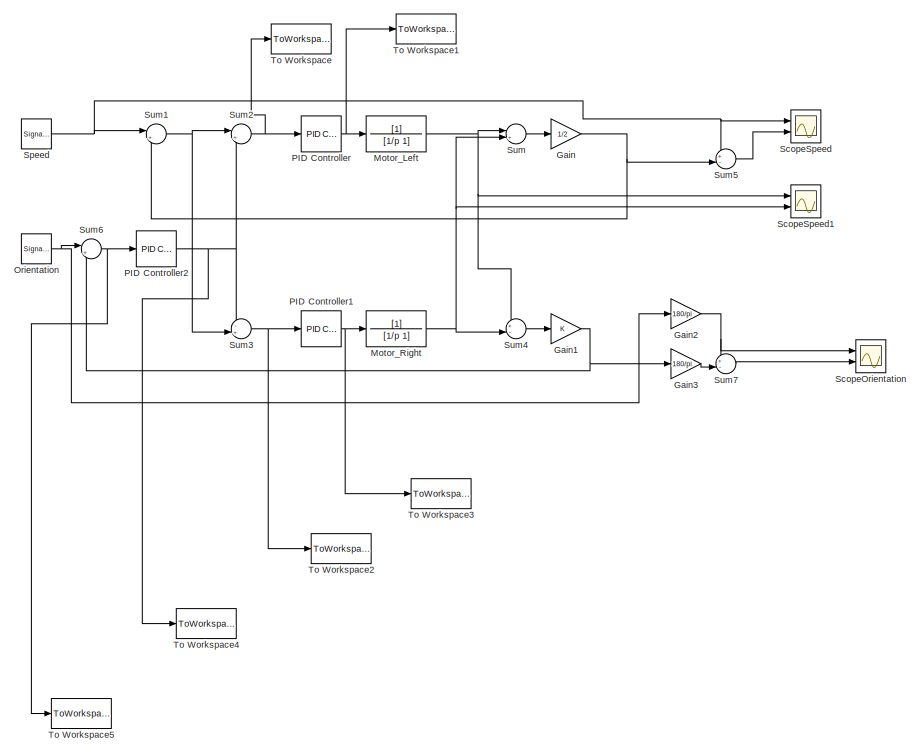
[diagram: root canvas - part 1/2, middle left region]
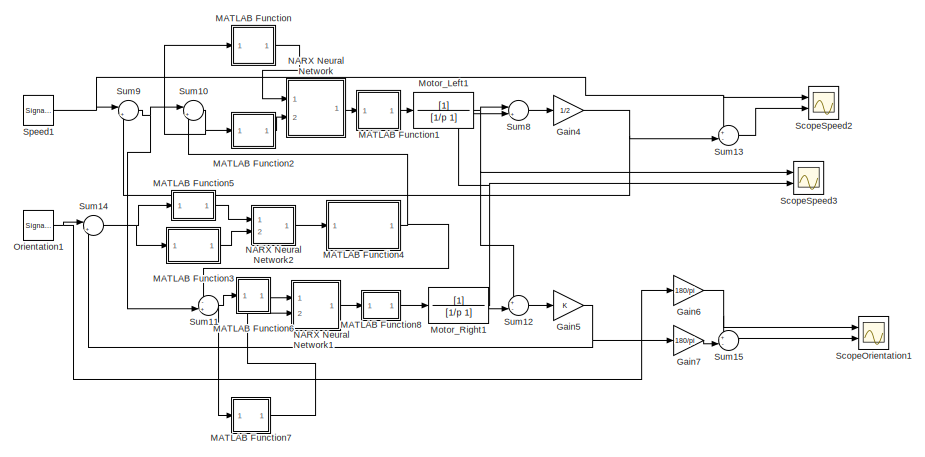
[diagram: root canvas - part 2/2, bottom right region]
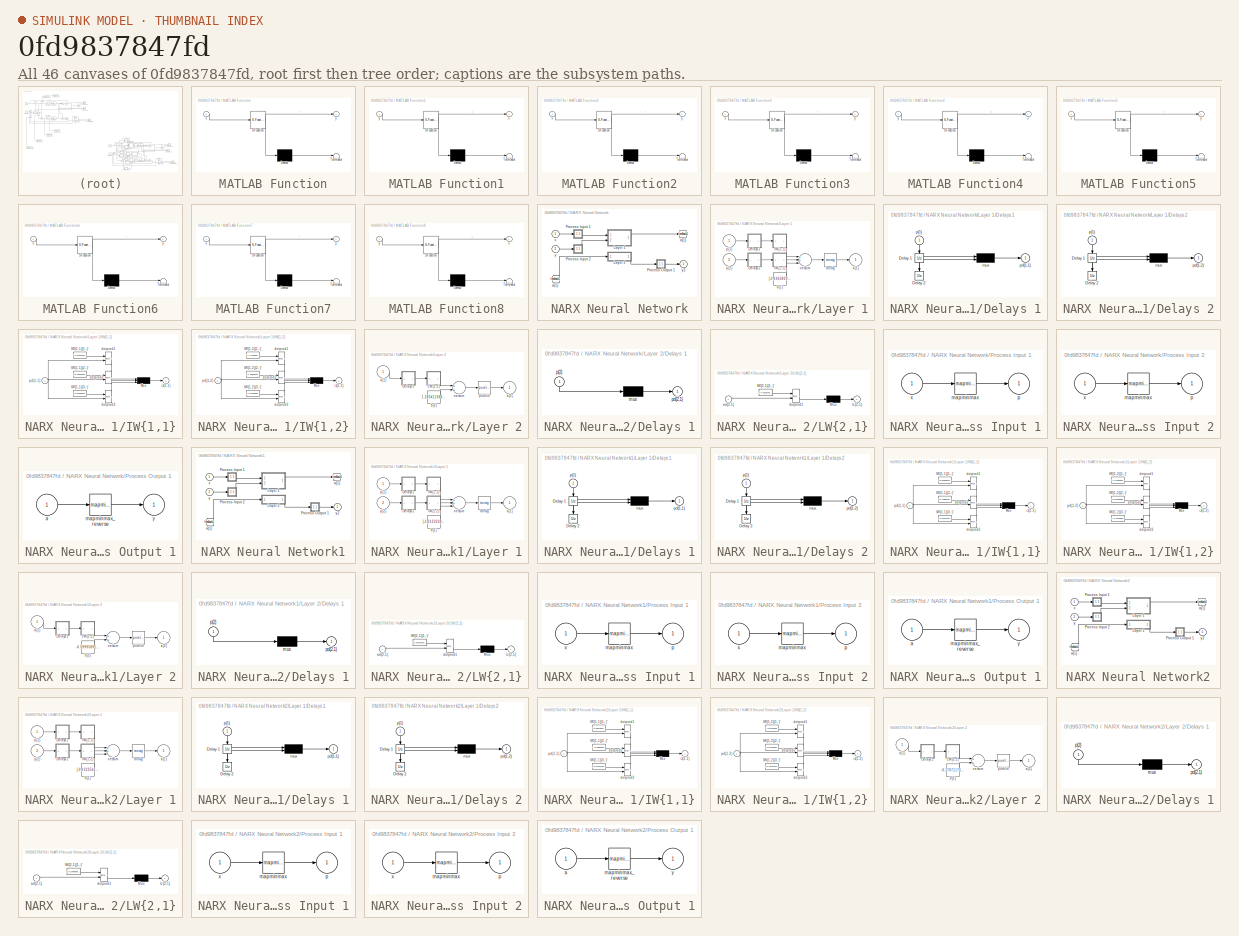
[diagram: thumbnail index - all 46 canvases of the model, root first then tree order]
MODEL slx_0fd9837847fd
KIND model
CONFIG AbsTol = auto
CONFIG EnableMultiTasking = on
CONFIG FixedStep = auto
CONFIG MaxStep = auto
CONFIG MinStep = auto
CONFIG RelTol = 1e-3
CONFIG SampleTimeConstraint = Unconstrained
CONFIG Solver = ode45
CONFIG SolverName = ode45
CONFIG StartTime = 0.0
CONFIG StopTime = 10.0
BLOCK [Gain] Gain
  Gain = 1/2
  OutDataTypeStr = Inherit: Inherit via internal rule
  ParamDataTypeStr = Inherit: Inherit via internal rule
  SaturateOnIntegerOverflow = off
BLOCK [Gain] Gain1
  OutDataTypeStr = Inherit: Inherit via internal rule
  ParamDataTypeStr = Inherit: Inherit via internal rule
  SaturateOnIntegerOverflow = off
BLOCK [Gain] Gain2
  Gain = 180/pi
  OutDataTypeStr = Inherit: Inherit via internal rule
  ParamDataTypeStr = Inherit: Inherit via internal rule
  SaturateOnIntegerOverflow = off
BLOCK [Gain] Gain3
  Gain = 180/pi
  OutDataTypeStr = Inherit: Inherit via internal rule
  ParamDataTypeStr = Inherit: Inherit via internal rule
  SaturateOnIntegerOverflow = off
BLOCK [Gain] Gain4
  Gain = 1/2
  OutDataTypeStr = Inherit: Inherit via internal rule
  ParamDataTypeStr = Inherit: Inherit via internal rule
  SaturateOnIntegerOverflow = off
BLOCK [Gain] Gain5
  OutDataTypeStr = Inherit: Inherit via internal rule
  ParamDataTypeStr = Inherit: Inherit via internal rule
  SaturateOnIntegerOverflow = off
BLOCK [Gain] Gain6
  Gain = 180/pi
  OutDataTypeStr = Inherit: Inherit via internal rule
  ParamDataTypeStr = Inherit: Inherit via internal rule
  SaturateOnIntegerOverflow = off
BLOCK [Gain] Gain7
  Gain = 180/pi
  OutDataTypeStr = Inherit: Inherit via internal rule
  ParamDataTypeStr = Inherit: Inherit via internal rule
  SaturateOnIntegerOverflow = off
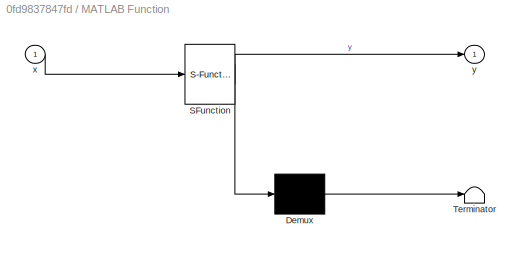
BLOCK [SubSystem] MATLAB Function
  ErrorFcn = Stateflow.Translate.translate
  PermitHierarchicalResolution = ExplicitOnly
  Ports = [1, 1]
  RequestExecContextInheritance = off
  SFBlockType = MATLAB Function
  TreatAsAtomicUnit = on
  Variant = off
BLOCK [Demux] MATLAB Function/ Demux 
  Outputs = 1
  Ports = [1, 1]
BLOCK [S-Function] MATLAB Function/ SFunction 
  EnableBusSupport = on
  FunctionName = sf_sfun
  PortCounts = [1 2]
  Ports = [1, 2]
  SFcnIsStateOwnerBlock = off
  SFunctionDeploymentMode = off
  Tag = Stateflow S-Function diff_drivewithann 2
BLOCK [Terminator] MATLAB Function/ Terminator 
BLOCK [Inport] MATLAB Function/x
  IconDisplay = Port number
BLOCK [Outport] MATLAB Function/y
  IconDisplay = Port number
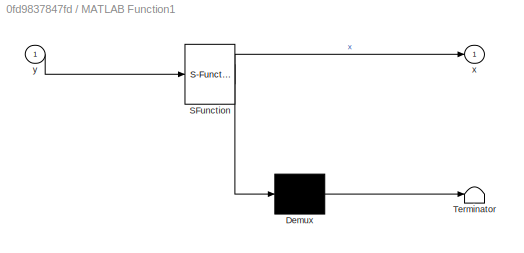
BLOCK [SubSystem] MATLAB Function1
  ErrorFcn = Stateflow.Translate.translate
  PermitHierarchicalResolution = ExplicitOnly
  Ports = [1, 1]
  RequestExecContextInheritance = off
  SFBlockType = MATLAB Function
  TreatAsAtomicUnit = on
  Variant = off
BLOCK [Demux] MATLAB Function1/ Demux 
  Outputs = 1
  Ports = [1, 1]
BLOCK [S-Function] MATLAB Function1/ SFunction 
  EnableBusSupport = on
  FunctionName = sf_sfun
  PortCounts = [1 2]
  Ports = [1, 2]
  SFcnIsStateOwnerBlock = off
  SFunctionDeploymentMode = off
  Tag = Stateflow S-Function diff_drivewithann 1
BLOCK [Terminator] MATLAB Function1/ Terminator 
BLOCK [Outport] MATLAB Function1/x
  IconDisplay = Port number
BLOCK [Inport] MATLAB Function1/y
  IconDisplay = Port number
BLOCK [SubSystem] MATLAB Function2
  ErrorFcn = Stateflow.Translate.translate
  PermitHierarchicalResolution = ExplicitOnly
  Ports = [1, 1]
  RequestExecContextInheritance = off
  SFBlockType = MATLAB Function
  TreatAsAtomicUnit = on
  Variant = off
BLOCK [Demux] MATLAB Function2/ Demux 
  Outputs = 1
  Ports = [1, 1]
BLOCK [S-Function] MATLAB Function2/ SFunction 
  EnableBusSupport = on
  FunctionName = sf_sfun
  PortCounts = [1 2]
  Ports = [1, 2]
  SFcnIsStateOwnerBlock = off
  SFunctionDeploymentMode = off
  Tag = Stateflow S-Function diff_drivewithann 3
BLOCK [Terminator] MATLAB Function2/ Terminator 
BLOCK [Inport] MATLAB Function2/x
  IconDisplay = Port number
BLOCK [Outport] MATLAB Function2/y
  IconDisplay = Port number
BLOCK [SubSystem] MATLAB Function3
  ErrorFcn = Stateflow.Translate.translate
  PermitHierarchicalResolution = ExplicitOnly
  Ports = [1, 1]
  RequestExecContextInheritance = off
  SFBlockType = MATLAB Function
  TreatAsAtomicUnit = on
  Variant = off
BLOCK [Demux] MATLAB Function3/ Demux 
  Outputs = 1
  Ports = [1, 1]
BLOCK [S-Function] MATLAB Function3/ SFunction 
  EnableBusSupport = on
  FunctionName = sf_sfun
  PortCounts = [1 2]
  Ports = [1, 2]
  SFcnIsStateOwnerBlock = off
  SFunctionDeploymentMode = off
  Tag = Stateflow S-Function diff_drivewithann 4
BLOCK [Terminator] MATLAB Function3/ Terminator 
BLOCK [Inport] MATLAB Function3/x
  IconDisplay = Port number
BLOCK [Outport] MATLAB Function3/y
  IconDisplay = Port number
BLOCK [SubSystem] MATLAB Function4
  ErrorFcn = Stateflow.Translate.translate
  PermitHierarchicalResolution = ExplicitOnly
  Ports = [1, 1]
  RequestExecContextInheritance = off
  SFBlockType = MATLAB Function
  TreatAsAtomicUnit = on
  Variant = off
BLOCK [Demux] MATLAB Function4/ Demux 
  Outputs = 1
  Ports = [1, 1]
BLOCK [S-Function] MATLAB Function4/ SFunction 
  EnableBusSupport = on
  FunctionName = sf_sfun
  PortCounts = [1 2]
  Ports = [1, 2]
  SFcnIsStateOwnerBlock = off
  SFunctionDeploymentMode = off
  Tag = Stateflow S-Function diff_drivewithann 5
BLOCK [Terminator] MATLAB Function4/ Terminator 
BLOCK [Outport] MATLAB Function4/x
  IconDisplay = Port number
BLOCK [Inport] MATLAB Function4/y
  IconDisplay = Port number
BLOCK [SubSystem] MATLAB Function5
  ErrorFcn = Stateflow.Translate.translate
  PermitHierarchicalResolution = ExplicitOnly
  Ports = [1, 1]
  RequestExecContextInheritance = off
  SFBlockType = MATLAB Function
  TreatAsAtomicUnit = on
  Variant = off
BLOCK [Demux] MATLAB Function5/ Demux 
  Outputs = 1
  Ports = [1, 1]
BLOCK [S-Function] MATLAB Function5/ SFunction 
  EnableBusSupport = on
  FunctionName = sf_sfun
  PortCounts = [1 2]
  Ports = [1, 2]
  SFcnIsStateOwnerBlock = off
  SFunctionDeploymentMode = off
  Tag = Stateflow S-Function diff_drivewithann 6
BLOCK [Terminator] MATLAB Function5/ Terminator 
BLOCK [Inport] MATLAB Function5/x
  IconDisplay = Port number
BLOCK [Outport] MATLAB Function5/y
  IconDisplay = Port number
BLOCK [SubSystem] MATLAB Function6
  ErrorFcn = Stateflow.Translate.translate
  PermitHierarchicalResolution = ExplicitOnly
  Ports = [1, 1]
  RequestExecContextInheritance = off
  SFBlockType = MATLAB Function
  TreatAsAtomicUnit = on
  Variant = off
BLOCK [Demux] MATLAB Function6/ Demux 
  Outputs = 1
  Ports = [1, 1]
BLOCK [S-Function] MATLAB Function6/ SFunction 
  EnableBusSupport = on
  FunctionName = sf_sfun
  PortCounts = [1 2]
  Ports = [1, 2]
  SFcnIsStateOwnerBlock = off
  SFunctionDeploymentMode = off
  Tag = Stateflow S-Function diff_drivewithann 7
BLOCK [Terminator] MATLAB Function6/ Terminator 
BLOCK [Inport] MATLAB Function6/x
  IconDisplay = Port number
BLOCK [Outport] MATLAB Function6/y
  IconDisplay = Port number
BLOCK [SubSystem] MATLAB Function7
  ErrorFcn = Stateflow.Translate.translate
  PermitHierarchicalResolution = ExplicitOnly
  Ports = [1, 1]
  RequestExecContextInheritance = off
  SFBlockType = MATLAB Function
  TreatAsAtomicUnit = on
  Variant = off
BLOCK [Demux] MATLAB Function7/ Demux 
  Outputs = 1
  Ports = [1, 1]
BLOCK [S-Function] MATLAB Function7/ SFunction 
  EnableBusSupport = on
  FunctionName = sf_sfun
  PortCounts = [1 2]
  Ports = [1, 2]
  SFcnIsStateOwnerBlock = off
  SFunctionDeploymentMode = off
  Tag = Stateflow S-Function diff_drivewithann 8
BLOCK [Terminator] MATLAB Function7/ Terminator 
BLOCK [Inport] MATLAB Function7/x
  IconDisplay = Port number
BLOCK [Outport] MATLAB Function7/y
  IconDisplay = Port number
BLOCK [SubSystem] MATLAB Function8
  ErrorFcn = Stateflow.Translate.translate
  PermitHierarchicalResolution = ExplicitOnly
  Ports = [1, 1]
  RequestExecContextInheritance = off
  SFBlockType = MATLAB Function
  TreatAsAtomicUnit = on
  Variant = off
BLOCK [Demux] MATLAB Function8/ Demux 
  Outputs = 1
  Ports = [1, 1]
BLOCK [S-Function] MATLAB Function8/ SFunction 
  EnableBusSupport = on
  FunctionName = sf_sfun
  PortCounts = [1 2]
  Ports = [1, 2]
  SFcnIsStateOwnerBlock = off
  SFunctionDeploymentMode = off
  Tag = Stateflow S-Function diff_drivewithann 9
BLOCK [Terminator] MATLAB Function8/ Terminator 
BLOCK [Outport] MATLAB Function8/x
  IconDisplay = Port number
BLOCK [Inport] MATLAB Function8/y
  IconDisplay = Port number
BLOCK [TransferFcn] Motor_Left
  Denominator = [1/p 1]
BLOCK [TransferFcn] Motor_Left1
  Denominator = [1/p 1]
BLOCK [TransferFcn] Motor_Right
  Denominator = [1/p 1]
BLOCK [TransferFcn] Motor_Right1
  Denominator = [1/p 1]
BLOCK [SubSystem] NARX Neural Network
  Ports = [2, 1]
  RequestExecContextInheritance = off
  Variant = off
BLOCK [From] NARX Neural Network/ a{1} 
  GotoTag = feedback1
BLOCK [SubSystem] NARX Neural Network/Layer 1
  Ports = [2, 1]
  RequestExecContextInheritance = off
  Variant = off
BLOCK [SubSystem] NARX Neural Network/Layer 1/Delays 1
  Ports = [1, 1]
  RequestExecContextInheritance = off
  Variant = off
BLOCK [UnitDelay] NARX Neural Network/Layer 1/Delays 1/Delay 1
  InitialCondition = pi_input_1_delayed_1
  SampleTime = 0.01
BLOCK [UnitDelay] NARX Neural Network/Layer 1/Delays 1/Delay 2
  InitialCondition = pi_input_1_delayed_2
  SampleTime = 0.01
BLOCK [Mux] NARX Neural Network/Layer 1/Delays 1/mux
  Inputs = 2
  Ports = [2, 1]
BLOCK [Outport] NARX Neural Network/Layer 1/Delays 1/pd{1,1}
  IconDisplay = Port number
BLOCK [Inport] NARX Neural Network/Layer 1/Delays 1/p{1}
  IconDisplay = Port number
  PortDimensions = 1
  SampleTime = 0.01
BLOCK [SubSystem] NARX Neural Network/Layer 1/Delays 2
  Ports = [1, 1]
  RequestExecContextInheritance = off
  Variant = off
BLOCK [UnitDelay] NARX Neural Network/Layer 1/Delays 2/Delay 1
  InitialCondition = pi_input_2_delayed_1
  SampleTime = 0.01
BLOCK [UnitDelay] NARX Neural Network/Layer 1/Delays 2/Delay 2
  InitialCondition = pi_input_2_delayed_2
  SampleTime = 0.01
BLOCK [Mux] NARX Neural Network/Layer 1/Delays 2/mux
  Inputs = 2
  Ports = [2, 1]
BLOCK [Outport] NARX Neural Network/Layer 1/Delays 2/pd{1,2}
  IconDisplay = Port number
BLOCK [Inport] NARX Neural Network/Layer 1/Delays 2/p{1}
  IconDisplay = Port number
  PortDimensions = 1
  SampleTime = 0.01
BLOCK [SubSystem] NARX Neural Network/Layer 1/IW{1,1}
  Ports = [1, 1]
  RequestExecContextInheritance = off
  Variant = off
BLOCK [Constant] NARX Neural Network/Layer 1/IW{1,1}/IW{1,1}(1,:)'
  Value = [1.5734440486855729712800666675320826470851898193359375;-0.54643836271324619513478637600201182067394256591796875]
BLOCK [Constant] NARX Neural Network/Layer 1/IW{1,1}/IW{1,1}(2,:)'
  Value = [0.2100329423128035610801589427865110337734222412109375;3.61954407738494676749496647971682250499725341796875]
BLOCK [Constant] NARX Neural Network/Layer 1/IW{1,1}/IW{1,1}(3,:)'
  Value = [0.60458333566891819810251718081417493522167205810546875;-0.79745061741960332479806083938456140458583831787109375]
BLOCK [Mux] NARX Neural Network/Layer 1/IW{1,1}/Mux
  Inputs = 3
  Ports = [3, 1]
BLOCK [Reference] NARX Neural Network/Layer 1/IW{1,1}/dotprod1  REF=neural/Weight Functions/dotprod
  Ports = [2, 1]
  SourceBlock = neural/Weight Functions/dotprod
  SourceProductBaseCode = NN
  SourceProductName = Neural Network Toolbox
  SourceType = DOTPROD
BLOCK [Reference] NARX Neural Network/Layer 1/IW{1,1}/dotprod2  REF=neural/Weight Functions/dotprod
  Ports = [2, 1]
  SourceBlock = neural/Weight Functions/dotprod
  SourceProductBaseCode = NN
  SourceProductName = Neural Network Toolbox
  SourceType = DOTPROD
BLOCK [Reference] NARX Neural Network/Layer 1/IW{1,1}/dotprod3  REF=neural/Weight Functions/dotprod
  Ports = [2, 1]
  SourceBlock = neural/Weight Functions/dotprod
  SourceProductBaseCode = NN
  SourceProductName = Neural Network Toolbox
  SourceType = DOTPROD
BLOCK [Outport] NARX Neural Network/Layer 1/IW{1,1}/iz{1,1}
  IconDisplay = Port number
BLOCK [Inport] NARX Neural Network/Layer 1/IW{1,1}/pd{1,1}
  IconDisplay = Port number
  PortDimensions = 2
  SampleTime = 0.01
BLOCK [SubSystem] NARX Neural Network/Layer 1/IW{1,2}
  Ports = [1, 1]
  RequestExecContextInheritance = off
  Variant = off
BLOCK [Constant] NARX Neural Network/Layer 1/IW{1,2}/IW{1,2}(1,:)'
  Value = [-1.4225312793059872173984103937982581555843353271484375;0.05195539255392367383734608665690757334232330322265625]
BLOCK [Constant] NARX Neural Network/Layer 1/IW{1,2}/IW{1,2}(2,:)'
  Value = [1.103846755504005017201052396558225154876708984375;-5.2142359606066985833194848964922130107879638671875]
BLOCK [Constant] NARX Neural Network/Layer 1/IW{1,2}/IW{1,2}(3,:)'
  Value = [-0.00463588296910996851274422425603916053660213947296142578125;-1.947790258422561038287312840111553668975830078125]
BLOCK [Mux] NARX Neural Network/Layer 1/IW{1,2}/Mux
  Inputs = 3
  Ports = [3, 1]
BLOCK [Reference] NARX Neural Network/Layer 1/IW{1,2}/dotprod1  REF=neural/Weight Functions/dotprod
  Ports = [2, 1]
  SourceBlock = neural/Weight Functions/dotprod
  SourceProductBaseCode = NN
  SourceProductName = Neural Network Toolbox
  SourceType = DOTPROD
BLOCK [Reference] NARX Neural Network/Layer 1/IW{1,2}/dotprod2  REF=neural/Weight Functions/dotprod
  Ports = [2, 1]
  SourceBlock = neural/Weight Functions/dotprod
  SourceProductBaseCode = NN
  SourceProductName = Neural Network Toolbox
  SourceType = DOTPROD
BLOCK [Reference] NARX Neural Network/Layer 1/IW{1,2}/dotprod3  REF=neural/Weight Functions/dotprod
  Ports = [2, 1]
  SourceBlock = neural/Weight Functions/dotprod
  SourceProductBaseCode = NN
  SourceProductName = Neural Network Toolbox
  SourceType = DOTPROD
BLOCK [Outport] NARX Neural Network/Layer 1/IW{1,2}/iz{1,2}
  IconDisplay = Port number
BLOCK [Inport] NARX Neural Network/Layer 1/IW{1,2}/pd{1,2}
  IconDisplay = Port number
  PortDimensions = 2
  SampleTime = 0.01
BLOCK [Outport] NARX Neural Network/Layer 1/a{1}
  IconDisplay = Port number
  InitialOutput = [0;0;0]
BLOCK [Constant] NARX Neural Network/Layer 1/b{1}
  Value = [-0.1663829052527935614680387743646861054003238677978515625;-0.00575077432148084211060989900943241082131862640380859375;3.716302790578283943290216484456323087215423583984375]
BLOCK [Sum] NARX Neural Network/Layer 1/netsum
  Inputs = 3
  Ports = [3, 1]
BLOCK [Inport] NARX Neural Network/Layer 1/p{1}
  IconDisplay = Port number
  PortDimensions = 1
  SampleTime = 0.01
BLOCK [Inport] NARX Neural Network/Layer 1/p{2}
  IconDisplay = Port number
  Port = 2
  PortDimensions = 1
  SampleTime = 0.01
BLOCK [Reference] NARX Neural Network/Layer 1/tansig  REF=neural/Transfer Functions/tansig
  Ports = [1, 1]
  SourceBlock = neural/Transfer Functions/tansig
  SourceProductBaseCode = NN
  SourceProductName = Neural Network Toolbox
  SourceType = TANSIG
BLOCK [SubSystem] NARX Neural Network/Layer 2
  Ports = [1, 1]
  RequestExecContextInheritance = off
  Variant = off
BLOCK [SubSystem] NARX Neural Network/Layer 2/Delays 1
  Ports = [1, 1]
  RequestExecContextInheritance = off
  Variant = off
BLOCK [Mux] NARX Neural Network/Layer 2/Delays 1/mux
  Inputs = 1
  Ports = [1, 1]
BLOCK [Outport] NARX Neural Network/Layer 2/Delays 1/pd{2,1}
  IconDisplay = Port number
BLOCK [Inport] NARX Neural Network/Layer 2/Delays 1/p{2}
  IconDisplay = Port number
  PortDimensions = 3
  SampleTime = 0.01
BLOCK [SubSystem] NARX Neural Network/Layer 2/LW{2,1}
  Ports = [1, 1]
  RequestExecContextInheritance = off
  Variant = off
BLOCK [Constant] NARX Neural Network/Layer 2/LW{2,1}/IW{2,1}(1,:)'
  Value = [-4.38224363457203569538478404865600168704986572265625;1.8483194418439097272965909724007360637187957763671875;-1.9931066565470676454907561492291279137134552001953125]
BLOCK [Mux] NARX Neural Network/Layer 2/LW{2,1}/Mux
  Inputs = 1
  Ports = [1, 1]
BLOCK [Inport] NARX Neural Network/Layer 2/LW{2,1}/ad{2,1}
  IconDisplay = Port number
  PortDimensions = 3
  SampleTime = 0.01
BLOCK [Reference] NARX Neural Network/Layer 2/LW{2,1}/dotprod1  REF=neural/Weight Functions/dotprod
  Ports = [2, 1]
  SourceBlock = neural/Weight Functions/dotprod
  SourceProductBaseCode = NN
  SourceProductName = Neural Network Toolbox
  SourceType = DOTPROD
BLOCK [Outport] NARX Neural Network/Layer 2/LW{2,1}/lz{2,1}
  IconDisplay = Port number
BLOCK [Inport] NARX Neural Network/Layer 2/a{1} 
  IconDisplay = Port number
  PortDimensions = 3
  SampleTime = 0.01
BLOCK [Outport] NARX Neural Network/Layer 2/a{2}
  IconDisplay = Port number
  InitialOutput = 0
BLOCK [Constant] NARX Neural Network/Layer 2/b{2}
  Value = 1.283411686798583861701672503841109573841094970703125
BLOCK [Sum] NARX Neural Network/Layer 2/netsum
  Inputs = 2
  Ports = [2, 1]
BLOCK [Reference] NARX Neural Network/Layer 2/purelin  REF=neural/Transfer Functions/purelin
  Ports = [1, 1]
  SourceBlock = neural/Transfer Functions/purelin
  SourceProductBaseCode = NN
  SourceProductName = Neural Network Toolbox
  SourceType = PURELIN
BLOCK [SubSystem] NARX Neural Network/Process Input 1
  Ports = [1, 1]
  RequestExecContextInheritance = off
  Variant = off
BLOCK [Reference] NARX Neural Network/Process Input 1/mapminmax  REF=neural/Processing Functions/mapminmax
  Ports = [1, 1]
  SourceBlock = neural/Processing Functions/mapminmax
  SourceProductBaseCode = NN
  SourceProductName = Neural Network Toolbox
  SourceType = MAPMINMAX Preprocess
BLOCK [Outport] NARX Neural Network/Process Input 1/p
  IconDisplay = Port number
  PortDimensions = 1
  SampleTime = 0.01
BLOCK [Inport] NARX Neural Network/Process Input 1/x
  IconDisplay = Port number
  PortDimensions = 1
  SampleTime = 0.01
BLOCK [SubSystem] NARX Neural Network/Process Input 2
  Ports = [1, 1]
  RequestExecContextInheritance = off
  Variant = off
BLOCK [Reference] NARX Neural Network/Process Input 2/mapminmax  REF=neural/Processing Functions/mapminmax
  Ports = [1, 1]
  SourceBlock = neural/Processing Functions/mapminmax
  SourceProductBaseCode = NN
  SourceProductName = Neural Network Toolbox
  SourceType = MAPMINMAX Preprocess
BLOCK [Outport] NARX Neural Network/Process Input 2/p
  IconDisplay = Port number
  PortDimensions = 1
  SampleTime = 0.01
BLOCK [Inport] NARX Neural Network/Process Input 2/x
  IconDisplay = Port number
  PortDimensions = 1
  SampleTime = 0.01
BLOCK [SubSystem] NARX Neural Network/Process Output 1
  Ports = [1, 1]
  RequestExecContextInheritance = off
  Variant = off
BLOCK [Inport] NARX Neural Network/Process Output 1/a
  IconDisplay = Port number
  PortDimensions = 1
  SampleTime = 0.01
BLOCK [Reference] NARX Neural Network/Process Output 1/mapminmax_reverse  REF=neural/Processing Functions/mapminmax_reverse
  Ports = [1, 1]
  SourceBlock = neural/Processing Functions/mapminmax_reverse
  SourceProductBaseCode = NN
  SourceProductName = Neural Network Toolbox
  SourceType = MAPMINMAX Reverse Process
BLOCK [Outport] NARX Neural Network/Process Output 1/y
  IconDisplay = Port number
  PortDimensions = 1
  SampleTime = 0.01
BLOCK [Goto] NARX Neural Network/a{1}
  GotoTag = feedback1
BLOCK [Inport] NARX Neural Network/x
  IconDisplay = Port number
  PortDimensions = 1
  SampleTime = 0.01
BLOCK [Inport] NARX Neural Network/y
  IconDisplay = Port number
  Port = 2
  PortDimensions = 1
  SampleTime = 0.01
BLOCK [Outport] NARX Neural Network/y2
  IconDisplay = Port number
  InitialOutput = 0
BLOCK [SubSystem] NARX Neural Network1
  Ports = [2, 1]
  RequestExecContextInheritance = off
  Variant = off
BLOCK [From] NARX Neural Network1/ a{1} 
  GotoTag = feedback1
BLOCK [SubSystem] NARX Neural Network1/Layer 1
  Ports = [2, 1]
  RequestExecContextInheritance = off
  Variant = off
BLOCK [SubSystem] NARX Neural Network1/Layer 1/Delays 1
  Ports = [1, 1]
  RequestExecContextInheritance = off
  Variant = off
BLOCK [UnitDelay] NARX Neural Network1/Layer 1/Delays 1/Delay 1
  InitialCondition = pi_input_1_delayed_1
  SampleTime = 0.01
BLOCK [UnitDelay] NARX Neural Network1/Layer 1/Delays 1/Delay 2
  InitialCondition = pi_input_1_delayed_2
  SampleTime = 0.01
BLOCK [Mux] NARX Neural Network1/Layer 1/Delays 1/mux
  Inputs = 2
  Ports = [2, 1]
BLOCK [Outport] NARX Neural Network1/Layer 1/Delays 1/pd{1,1}
  IconDisplay = Port number
BLOCK [Inport] NARX Neural Network1/Layer 1/Delays 1/p{1}
  IconDisplay = Port number
  PortDimensions = 1
  SampleTime = 0.01
BLOCK [SubSystem] NARX Neural Network1/Layer 1/Delays 2
  Ports = [1, 1]
  RequestExecContextInheritance = off
  Variant = off
BLOCK [UnitDelay] NARX Neural Network1/Layer 1/Delays 2/Delay 1
  InitialCondition = pi_input_2_delayed_1
  SampleTime = 0.01
BLOCK [UnitDelay] NARX Neural Network1/Layer 1/Delays 2/Delay 2
  InitialCondition = pi_input_2_delayed_2
  SampleTime = 0.01
BLOCK [Mux] NARX Neural Network1/Layer 1/Delays 2/mux
  Inputs = 2
  Ports = [2, 1]
BLOCK [Outport] NARX Neural Network1/Layer 1/Delays 2/pd{1,2}
  IconDisplay = Port number
BLOCK [Inport] NARX Neural Network1/Layer 1/Delays 2/p{1}
  IconDisplay = Port number
  PortDimensions = 1
  SampleTime = 0.01
BLOCK [SubSystem] NARX Neural Network1/Layer 1/IW{1,1}
  Ports = [1, 1]
  RequestExecContextInheritance = off
  Variant = off
BLOCK [Constant] NARX Neural Network1/Layer 1/IW{1,1}/IW{1,1}(1,:)'
  Value = [0.87659644088233334979776145701180212199687957763671875;2.02105910627466567319743262487463653087615966796875]
BLOCK [Constant] NARX Neural Network1/Layer 1/IW{1,1}/IW{1,1}(2,:)'
  Value = [0.7189643729063155408454122152761556208133697509765625;-0.42073274613876865402062321663834154605865478515625]
BLOCK [Constant] NARX Neural Network1/Layer 1/IW{1,1}/IW{1,1}(3,:)'
  Value = [2.276784702171508190104987079394049942493438720703125;0.3195963682955531570684115649783052504062652587890625]
BLOCK [Mux] NARX Neural Network1/Layer 1/IW{1,1}/Mux
  Inputs = 3
  Ports = [3, 1]
BLOCK [Reference] NARX Neural Network1/Layer 1/IW{1,1}/dotprod1  REF=neural/Weight Functions/dotprod
  Ports = [2, 1]
  SourceBlock = neural/Weight Functions/dotprod
  SourceProductBaseCode = NN
  SourceProductName = Neural Network Toolbox
  SourceType = DOTPROD
BLOCK [Reference] NARX Neural Network1/Layer 1/IW{1,1}/dotprod2  REF=neural/Weight Functions/dotprod
  Ports = [2, 1]
  SourceBlock = neural/Weight Functions/dotprod
  SourceProductBaseCode = NN
  SourceProductName = Neural Network Toolbox
  SourceType = DOTPROD
BLOCK [Reference] NARX Neural Network1/Layer 1/IW{1,1}/dotprod3  REF=neural/Weight Functions/dotprod
  Ports = [2, 1]
  SourceBlock = neural/Weight Functions/dotprod
  SourceProductBaseCode = NN
  SourceProductName = Neural Network Toolbox
  SourceType = DOTPROD
BLOCK [Outport] NARX Neural Network1/Layer 1/IW{1,1}/iz{1,1}
  IconDisplay = Port number
BLOCK [Inport] NARX Neural Network1/Layer 1/IW{1,1}/pd{1,1}
  IconDisplay = Port number
  PortDimensions = 2
  SampleTime = 0.01
BLOCK [SubSystem] NARX Neural Network1/Layer 1/IW{1,2}
  Ports = [1, 1]
  RequestExecContextInheritance = off
  Variant = off
BLOCK [Constant] NARX Neural Network1/Layer 1/IW{1,2}/IW{1,2}(1,:)'
  Value = [-0.3753933953238017817710669987718574702739715576171875;-0.265082566354184867574161899028695188462734222412109375]
BLOCK [Constant] NARX Neural Network1/Layer 1/IW{1,2}/IW{1,2}(2,:)'
  Value = [0.242398981483776643219840707388357259333133697509765625;-0.0100700786173634100617579889558328432030975818634033203125]
BLOCK [Constant] NARX Neural Network1/Layer 1/IW{1,2}/IW{1,2}(3,:)'
  Value = [-0.1440980352874709768951078103782492689788341522216796875;-1.57924391790788565259617826086468994617462158203125]
BLOCK [Mux] NARX Neural Network1/Layer 1/IW{1,2}/Mux
  Inputs = 3
  Ports = [3, 1]
BLOCK [Reference] NARX Neural Network1/Layer 1/IW{1,2}/dotprod1  REF=neural/Weight Functions/dotprod
  Ports = [2, 1]
  SourceBlock = neural/Weight Functions/dotprod
  SourceProductBaseCode = NN
  SourceProductName = Neural Network Toolbox
  SourceType = DOTPROD
BLOCK [Reference] NARX Neural Network1/Layer 1/IW{1,2}/dotprod2  REF=neural/Weight Functions/dotprod
  Ports = [2, 1]
  SourceBlock = neural/Weight Functions/dotprod
  SourceProductBaseCode = NN
  SourceProductName = Neural Network Toolbox
  SourceType = DOTPROD
BLOCK [Reference] NARX Neural Network1/Layer 1/IW{1,2}/dotprod3  REF=neural/Weight Functions/dotprod
  Ports = [2, 1]
  SourceBlock = neural/Weight Functions/dotprod
  SourceProductBaseCode = NN
  SourceProductName = Neural Network Toolbox
  SourceType = DOTPROD
BLOCK [Outport] NARX Neural Network1/Layer 1/IW{1,2}/iz{1,2}
  IconDisplay = Port number
BLOCK [Inport] NARX Neural Network1/Layer 1/IW{1,2}/pd{1,2}
  IconDisplay = Port number
  PortDimensions = 2
  SampleTime = 0.01
BLOCK [Outport] NARX Neural Network1/Layer 1/a{1}
  IconDisplay = Port number
  InitialOutput = [0;0;0]
BLOCK [Constant] NARX Neural Network1/Layer 1/b{1}
  Value = [-2.212333846300037265564242261461913585662841796875;0.68457483109622951911177324291202239692211151123046875;1.3584973910749773562400832815910689532756805419921875]
BLOCK [Sum] NARX Neural Network1/Layer 1/netsum
  Inputs = 3
  Ports = [3, 1]
BLOCK [Inport] NARX Neural Network1/Layer 1/p{1}
  IconDisplay = Port number
  PortDimensions = 1
  SampleTime = 0.01
BLOCK [Inport] NARX Neural Network1/Layer 1/p{2}
  IconDisplay = Port number
  Port = 2
  PortDimensions = 1
  SampleTime = 0.01
BLOCK [Reference] NARX Neural Network1/Layer 1/tansig  REF=neural/Transfer Functions/tansig
  Ports = [1, 1]
  SourceBlock = neural/Transfer Functions/tansig
  SourceProductBaseCode = NN
  SourceProductName = Neural Network Toolbox
  SourceType = TANSIG
BLOCK [SubSystem] NARX Neural Network1/Layer 2
  Ports = [1, 1]
  RequestExecContextInheritance = off
  Variant = off
BLOCK [SubSystem] NARX Neural Network1/Layer 2/Delays 1
  Ports = [1, 1]
  RequestExecContextInheritance = off
  Variant = off
BLOCK [Mux] NARX Neural Network1/Layer 2/Delays 1/mux
  Inputs = 1
  Ports = [1, 1]
BLOCK [Outport] NARX Neural Network1/Layer 2/Delays 1/pd{2,1}
  IconDisplay = Port number
BLOCK [Inport] NARX Neural Network1/Layer 2/Delays 1/p{2}
  IconDisplay = Port number
  PortDimensions = 3
  SampleTime = 0.01
BLOCK [SubSystem] NARX Neural Network1/Layer 2/LW{2,1}
  Ports = [1, 1]
  RequestExecContextInheritance = off
  Variant = off
BLOCK [Constant] NARX Neural Network1/Layer 2/LW{2,1}/IW{2,1}(1,:)'
  Value = [0.26704376058557699469275803494383580982685089111328125;3.1858002429487140005903711426071822643280029296875;-1.1785194277568213916396189233637414872646331787109375]
BLOCK [Mux] NARX Neural Network1/Layer 2/LW{2,1}/Mux
  Inputs = 1
  Ports = [1, 1]
BLOCK [Inport] NARX Neural Network1/Layer 2/LW{2,1}/ad{2,1}
  IconDisplay = Port number
  PortDimensions = 3
  SampleTime = 0.01
BLOCK [Reference] NARX Neural Network1/Layer 2/LW{2,1}/dotprod1  REF=neural/Weight Functions/dotprod
  Ports = [2, 1]
  SourceBlock = neural/Weight Functions/dotprod
  SourceProductBaseCode = NN
  SourceProductName = Neural Network Toolbox
  SourceType = DOTPROD
BLOCK [Outport] NARX Neural Network1/Layer 2/LW{2,1}/lz{2,1}
  IconDisplay = Port number
BLOCK [Inport] NARX Neural Network1/Layer 2/a{1} 
  IconDisplay = Port number
  PortDimensions = 3
  SampleTime = 0.01
BLOCK [Outport] NARX Neural Network1/Layer 2/a{2}
  IconDisplay = Port number
  InitialOutput = 0
BLOCK [Constant] NARX Neural Network1/Layer 2/b{2}
  Value = -0.59995891683298363528109575781854800879955291748046875
BLOCK [Sum] NARX Neural Network1/Layer 2/netsum
  Inputs = 2
  Ports = [2, 1]
BLOCK [Reference] NARX Neural Network1/Layer 2/purelin  REF=neural/Transfer Functions/purelin
  Ports = [1, 1]
  SourceBlock = neural/Transfer Functions/purelin
  SourceProductBaseCode = NN
  SourceProductName = Neural Network Toolbox
  SourceType = PURELIN
BLOCK [SubSystem] NARX Neural Network1/Process Input 1
  Ports = [1, 1]
  RequestExecContextInheritance = off
  Variant = off
BLOCK [Reference] NARX Neural Network1/Process Input 1/mapminmax  REF=neural/Processing Functions/mapminmax
  Ports = [1, 1]
  SourceBlock = neural/Processing Functions/mapminmax
  SourceProductBaseCode = NN
  SourceProductName = Neural Network Toolbox
  SourceType = MAPMINMAX Preprocess
BLOCK [Outport] NARX Neural Network1/Process Input 1/p
  IconDisplay = Port number
  PortDimensions = 1
  SampleTime = 0.01
BLOCK [Inport] NARX Neural Network1/Process Input 1/x
  IconDisplay = Port number
  PortDimensions = 1
  SampleTime = 0.01
BLOCK [SubSystem] NARX Neural Network1/Process Input 2
  Ports = [1, 1]
  RequestExecContextInheritance = off
  Variant = off
BLOCK [Reference] NARX Neural Network1/Process Input 2/mapminmax  REF=neural/Processing Functions/mapminmax
  Ports = [1, 1]
  SourceBlock = neural/Processing Functions/mapminmax
  SourceProductBaseCode = NN
  SourceProductName = Neural Network Toolbox
  SourceType = MAPMINMAX Preprocess
BLOCK [Outport] NARX Neural Network1/Process Input 2/p
  IconDisplay = Port number
  PortDimensions = 1
  SampleTime = 0.01
BLOCK [Inport] NARX Neural Network1/Process Input 2/x
  IconDisplay = Port number
  PortDimensions = 1
  SampleTime = 0.01
BLOCK [SubSystem] NARX Neural Network1/Process Output 1
  Ports = [1, 1]
  RequestExecContextInheritance = off
  Variant = off
BLOCK [Inport] NARX Neural Network1/Process Output 1/a
  IconDisplay = Port number
  PortDimensions = 1
  SampleTime = 0.01
BLOCK [Reference] NARX Neural Network1/Process Output 1/mapminmax_reverse  REF=neural/Processing Functions/mapminmax_reverse
  Ports = [1, 1]
  SourceBlock = neural/Processing Functions/mapminmax_reverse
  SourceProductBaseCode = NN
  SourceProductName = Neural Network Toolbox
  SourceType = MAPMINMAX Reverse Process
BLOCK [Outport] NARX Neural Network1/Process Output 1/y
  IconDisplay = Port number
  PortDimensions = 1
  SampleTime = 0.01
BLOCK [Goto] NARX Neural Network1/a{1}
  GotoTag = feedback1
BLOCK [Inport] NARX Neural Network1/x
  IconDisplay = Port number
  PortDimensions = 1
  SampleTime = 0.01
BLOCK [Inport] NARX Neural Network1/y
  IconDisplay = Port number
  Port = 2
  PortDimensions = 1
  SampleTime = 0.01
BLOCK [Outport] NARX Neural Network1/y2
  IconDisplay = Port number
  InitialOutput = 0
BLOCK [SubSystem] NARX Neural Network2
  Ports = [2, 1]
  RequestExecContextInheritance = off
  Variant = off
BLOCK [From] NARX Neural Network2/ a{1} 
  GotoTag = feedback1
BLOCK [SubSystem] NARX Neural Network2/Layer 1
  Ports = [2, 1]
  RequestExecContextInheritance = off
  Variant = off
BLOCK [SubSystem] NARX Neural Network2/Layer 1/Delays 1
  Ports = [1, 1]
  RequestExecContextInheritance = off
  Variant = off
BLOCK [UnitDelay] NARX Neural Network2/Layer 1/Delays 1/Delay 1
  InitialCondition = pi_input_1_delayed_1
  SampleTime = 0.01
BLOCK [UnitDelay] NARX Neural Network2/Layer 1/Delays 1/Delay 2
  InitialCondition = pi_input_1_delayed_2
  SampleTime = 0.01
BLOCK [Mux] NARX Neural Network2/Layer 1/Delays 1/mux
  Inputs = 2
  Ports = [2, 1]
BLOCK [Outport] NARX Neural Network2/Layer 1/Delays 1/pd{1,1}
  IconDisplay = Port number
BLOCK [Inport] NARX Neural Network2/Layer 1/Delays 1/p{1}
  IconDisplay = Port number
  PortDimensions = 1
  SampleTime = 0.01
BLOCK [SubSystem] NARX Neural Network2/Layer 1/Delays 2
  Ports = [1, 1]
  RequestExecContextInheritance = off
  Variant = off
BLOCK [UnitDelay] NARX Neural Network2/Layer 1/Delays 2/Delay 1
  InitialCondition = pi_input_2_delayed_1
  SampleTime = 0.01
BLOCK [UnitDelay] NARX Neural Network2/Layer 1/Delays 2/Delay 2
  InitialCondition = pi_input_2_delayed_2
  SampleTime = 0.01
BLOCK [Mux] NARX Neural Network2/Layer 1/Delays 2/mux
  Inputs = 2
  Ports = [2, 1]
BLOCK [Outport] NARX Neural Network2/Layer 1/Delays 2/pd{1,2}
  IconDisplay = Port number
BLOCK [Inport] NARX Neural Network2/Layer 1/Delays 2/p{1}
  IconDisplay = Port number
  PortDimensions = 1
  SampleTime = 0.01
BLOCK [SubSystem] NARX Neural Network2/Layer 1/IW{1,1}
  Ports = [1, 1]
  RequestExecContextInheritance = off
  Variant = off
BLOCK [Constant] NARX Neural Network2/Layer 1/IW{1,1}/IW{1,1}(1,:)'
  Value = [0.382790479906068681348330073888064362108707427978515625;-0.38299561697570705387505540784331969916820526123046875]
BLOCK [Constant] NARX Neural Network2/Layer 1/IW{1,1}/IW{1,1}(2,:)'
  Value = [-0.2866090555757085933663574905949644744396209716796875;-1.1978723087388944978926019757636822760105133056640625]
BLOCK [Constant] NARX Neural Network2/Layer 1/IW{1,1}/IW{1,1}(3,:)'
  Value = [0.5212217801061809208107433732948265969753265380859375;-0.18278639113979988639613338818890042603015899658203125]
BLOCK [Mux] NARX Neural Network2/Layer 1/IW{1,1}/Mux
  Inputs = 3
  Ports = [3, 1]
BLOCK [Reference] NARX Neural Network2/Layer 1/IW{1,1}/dotprod1  REF=neural/Weight Functions/dotprod
  Ports = [2, 1]
  SourceBlock = neural/Weight Functions/dotprod
  SourceProductBaseCode = NN
  SourceProductName = Neural Network Toolbox
  SourceType = DOTPROD
BLOCK [Reference] NARX Neural Network2/Layer 1/IW{1,1}/dotprod2  REF=neural/Weight Functions/dotprod
  Ports = [2, 1]
  SourceBlock = neural/Weight Functions/dotprod
  SourceProductBaseCode = NN
  SourceProductName = Neural Network Toolbox
  SourceType = DOTPROD
BLOCK [Reference] NARX Neural Network2/Layer 1/IW{1,1}/dotprod3  REF=neural/Weight Functions/dotprod
  Ports = [2, 1]
  SourceBlock = neural/Weight Functions/dotprod
  SourceProductBaseCode = NN
  SourceProductName = Neural Network Toolbox
  SourceType = DOTPROD
BLOCK [Outport] NARX Neural Network2/Layer 1/IW{1,1}/iz{1,1}
  IconDisplay = Port number
BLOCK [Inport] NARX Neural Network2/Layer 1/IW{1,1}/pd{1,1}
  IconDisplay = Port number
  PortDimensions = 2
  SampleTime = 0.01
BLOCK [SubSystem] NARX Neural Network2/Layer 1/IW{1,2}
  Ports = [1, 1]
  RequestExecContextInheritance = off
  Variant = off
BLOCK [Constant] NARX Neural Network2/Layer 1/IW{1,2}/IW{1,2}(1,:)'
  Value = [-0.654460843161816629987015403457917273044586181640625;0.49162651211288921349051861398038454353809356689453125]
BLOCK [Constant] NARX Neural Network2/Layer 1/IW{1,2}/IW{1,2}(2,:)'
  Value = [1.0179390567911277276635928501491434872150421142578125;-0.94230935495619749797668873725342564284801483154296875]
BLOCK [Constant] NARX Neural Network2/Layer 1/IW{1,2}/IW{1,2}(3,:)'
  Value = [0.7944227557881962109576079456019215285778045654296875;-0.20059578446220160952151445599156431853771209716796875]
BLOCK [Mux] NARX Neural Network2/Layer 1/IW{1,2}/Mux
  Inputs = 3
  Ports = [3, 1]
BLOCK [Reference] NARX Neural Network2/Layer 1/IW{1,2}/dotprod1  REF=neural/Weight Functions/dotprod
  Ports = [2, 1]
  SourceBlock = neural/Weight Functions/dotprod
  SourceProductBaseCode = NN
  SourceProductName = Neural Network Toolbox
  SourceType = DOTPROD
BLOCK [Reference] NARX Neural Network2/Layer 1/IW{1,2}/dotprod2  REF=neural/Weight Functions/dotprod
  Ports = [2, 1]
  SourceBlock = neural/Weight Functions/dotprod
  SourceProductBaseCode = NN
  SourceProductName = Neural Network Toolbox
  SourceType = DOTPROD
BLOCK [Reference] NARX Neural Network2/Layer 1/IW{1,2}/dotprod3  REF=neural/Weight Functions/dotprod
  Ports = [2, 1]
  SourceBlock = neural/Weight Functions/dotprod
  SourceProductBaseCode = NN
  SourceProductName = Neural Network Toolbox
  SourceType = DOTPROD
BLOCK [Outport] NARX Neural Network2/Layer 1/IW{1,2}/iz{1,2}
  IconDisplay = Port number
BLOCK [Inport] NARX Neural Network2/Layer 1/IW{1,2}/pd{1,2}
  IconDisplay = Port number
  PortDimensions = 2
  SampleTime = 0.01
BLOCK [Outport] NARX Neural Network2/Layer 1/a{1}
  IconDisplay = Port number
  InitialOutput = [0;0;0]
BLOCK [Constant] NARX Neural Network2/Layer 1/b{1}
  Value = [-0.12225612393887662354696743705062544904649257659912109375;1.46883681542898703042965280474163591861724853515625;-2.23234454553832417644798624678514897823333740234375]
BLOCK [Sum] NARX Neural Network2/Layer 1/netsum
  Inputs = 3
  Ports = [3, 1]
BLOCK [Inport] NARX Neural Network2/Layer 1/p{1}
  IconDisplay = Port number
  PortDimensions = 1
  SampleTime = 0.01
BLOCK [Inport] NARX Neural Network2/Layer 1/p{2}
  IconDisplay = Port number
  Port = 2
  PortDimensions = 1
  SampleTime = 0.01
BLOCK [Reference] NARX Neural Network2/Layer 1/tansig  REF=neural/Transfer Functions/tansig
  Ports = [1, 1]
  SourceBlock = neural/Transfer Functions/tansig
  SourceProductBaseCode = NN
  SourceProductName = Neural Network Toolbox
  SourceType = TANSIG
BLOCK [SubSystem] NARX Neural Network2/Layer 2
  Ports = [1, 1]
  RequestExecContextInheritance = off
  Variant = off
BLOCK [SubSystem] NARX Neural Network2/Layer 2/Delays 1
  Ports = [1, 1]
  RequestExecContextInheritance = off
  Variant = off
BLOCK [Mux] NARX Neural Network2/Layer 2/Delays 1/mux
  Inputs = 1
  Ports = [1, 1]
BLOCK [Outport] NARX Neural Network2/Layer 2/Delays 1/pd{2,1}
  IconDisplay = Port number
BLOCK [Inport] NARX Neural Network2/Layer 2/Delays 1/p{2}
  IconDisplay = Port number
  PortDimensions = 3
  SampleTime = 0.01
BLOCK [SubSystem] NARX Neural Network2/Layer 2/LW{2,1}
  Ports = [1, 1]
  RequestExecContextInheritance = off
  Variant = off
BLOCK [Constant] NARX Neural Network2/Layer 2/LW{2,1}/IW{2,1}(1,:)'
  Value = [-6.09405647885008239228454840485937893390655517578125;0.022704070154802795389326064423585194163024425506591796875;0.6039027000700734060245622458751313388347625732421875]
BLOCK [Mux] NARX Neural Network2/Layer 2/LW{2,1}/Mux
  Inputs = 1
  Ports = [1, 1]
BLOCK [Inport] NARX Neural Network2/Layer 2/LW{2,1}/ad{2,1}
  IconDisplay = Port number
  PortDimensions = 3
  SampleTime = 0.01
BLOCK [Reference] NARX Neural Network2/Layer 2/LW{2,1}/dotprod1  REF=neural/Weight Functions/dotprod
  Ports = [2, 1]
  SourceBlock = neural/Weight Functions/dotprod
  SourceProductBaseCode = NN
  SourceProductName = Neural Network Toolbox
  SourceType = DOTPROD
BLOCK [Outport] NARX Neural Network2/Layer 2/LW{2,1}/lz{2,1}
  IconDisplay = Port number
BLOCK [Inport] NARX Neural Network2/Layer 2/a{1} 
  IconDisplay = Port number
  PortDimensions = 3
  SampleTime = 0.01
BLOCK [Outport] NARX Neural Network2/Layer 2/a{2}
  IconDisplay = Port number
  InitialOutput = 0
BLOCK [Constant] NARX Neural Network2/Layer 2/b{2}
  Value = -0.1707117512895936772832072847450035624206066131591796875
BLOCK [Sum] NARX Neural Network2/Layer 2/netsum
  Inputs = 2
  Ports = [2, 1]
BLOCK [Reference] NARX Neural Network2/Layer 2/purelin  REF=neural/Transfer Functions/purelin
  Ports = [1, 1]
  SourceBlock = neural/Transfer Functions/purelin
  SourceProductBaseCode = NN
  SourceProductName = Neural Network Toolbox
  SourceType = PURELIN
BLOCK [SubSystem] NARX Neural Network2/Process Input 1
  Ports = [1, 1]
  RequestExecContextInheritance = off
  Variant = off
BLOCK [Reference] NARX Neural Network2/Process Input 1/mapminmax  REF=neural/Processing Functions/mapminmax
  Ports = [1, 1]
  SourceBlock = neural/Processing Functions/mapminmax
  SourceProductBaseCode = NN
  SourceProductName = Neural Network Toolbox
  SourceType = MAPMINMAX Preprocess
BLOCK [Outport] NARX Neural Network2/Process Input 1/p
  IconDisplay = Port number
  PortDimensions = 1
  SampleTime = 0.01
BLOCK [Inport] NARX Neural Network2/Process Input 1/x
  IconDisplay = Port number
  PortDimensions = 1
  SampleTime = 0.01
BLOCK [SubSystem] NARX Neural Network2/Process Input 2
  Ports = [1, 1]
  RequestExecContextInheritance = off
  Variant = off
BLOCK [Reference] NARX Neural Network2/Process Input 2/mapminmax  REF=neural/Processing Functions/mapminmax
  Ports = [1, 1]
  SourceBlock = neural/Processing Functions/mapminmax
  SourceProductBaseCode = NN
  SourceProductName = Neural Network Toolbox
  SourceType = MAPMINMAX Preprocess
BLOCK [Outport] NARX Neural Network2/Process Input 2/p
  IconDisplay = Port number
  PortDimensions = 1
  SampleTime = 0.01
BLOCK [Inport] NARX Neural Network2/Process Input 2/x
  IconDisplay = Port number
  PortDimensions = 1
  SampleTime = 0.01
BLOCK [SubSystem] NARX Neural Network2/Process Output 1
  Ports = [1, 1]
  RequestExecContextInheritance = off
  Variant = off
BLOCK [Inport] NARX Neural Network2/Process Output 1/a
  IconDisplay = Port number
  PortDimensions = 1
  SampleTime = 0.01
BLOCK [Reference] NARX Neural Network2/Process Output 1/mapminmax_reverse  REF=neural/Processing Functions/mapminmax_reverse
  Ports = [1, 1]
  SourceBlock = neural/Processing Functions/mapminmax_reverse
  SourceProductBaseCode = NN
  SourceProductName = Neural Network Toolbox
  SourceType = MAPMINMAX Reverse Process
BLOCK [Outport] NARX Neural Network2/Process Output 1/y
  IconDisplay = Port number
  PortDimensions = 1
  SampleTime = 0.01
BLOCK [Goto] NARX Neural Network2/a{1}
  GotoTag = feedback1
BLOCK [Inport] NARX Neural Network2/x
  IconDisplay = Port number
  PortDimensions = 1
  SampleTime = 0.01
BLOCK [Inport] NARX Neural Network2/y
  IconDisplay = Port number
  Port = 2
  PortDimensions = 1
  SampleTime = 0.01
BLOCK [Outport] NARX Neural Network2/y2
  IconDisplay = Port number
  InitialOutput = 0
BLOCK [SignalGenerator] Orientation
  Amplitude = pi/2
  Ports = [0, 1]
BLOCK [SignalGenerator] Orientation1
  Amplitude = pi/2
  Ports = [0, 1]
BLOCK [Reference] PID Controller  REF=simulink/Continuous/PID Controller
  Ports = [1, 1]
  SourceBlock = simulink/Continuous/PID Controller
  SourceProductBaseCode = SL
  SourceProductName = Simulink
  SourceType = PID 1dof
BLOCK [Reference] PID Controller1  REF=simulink/Continuous/PID Controller
  Ports = [1, 1]
  SourceBlock = simulink/Continuous/PID Controller
  SourceProductBaseCode = SL
  SourceProductName = Simulink
  SourceType = PID 1dof
BLOCK [Reference] PID Controller2  REF=simulink/Continuous/PID Controller
  Ports = [1, 1]
  SourceBlock = simulink/Continuous/PID Controller
  SourceProductBaseCode = SL
  SourceProductName = Simulink
  SourceType = PID 1dof
BLOCK [Scope] ScopeOrientation
  NumInputPorts = 2
  Ports = [2]
  ScopeSpecificationString = Simulink.scopes.TimeScopeBlockCfg('CurrentConfiguration', extmgr.ConfigurationSet(extmgr.Configuration('Core','General UI',true),extmgr.Configuration('Core','Source UI',true),extmgr.Configuration('Sources','WiredSimulink',true,'DataLoggingVariableName','ScopeData1','DataLoggingSaveFormat','StructureWithTime','DataLoggingDecimation','1','DataLoggingDecimateData',true),extmgr.Configuration('Visuals'...<+2385ch>
BLOCK [Scope] ScopeOrientation1
  NumInputPorts = 2
  Ports = [2]
  ScopeSpecificationString = Simulink.scopes.TimeScopeBlockCfg('CurrentConfiguration', extmgr.ConfigurationSet(extmgr.Configuration('Core','General UI',true),extmgr.Configuration('Core','Source UI',true),extmgr.Configuration('Sources','WiredSimulink',true,'DataLoggingVariableName','ScopeData1','DataLoggingSaveFormat','StructureWithTime','DataLoggingDecimation','1','DataLoggingDecimateData',true),extmgr.Configuration('Visuals'...<+2412ch>
BLOCK [Scope] ScopeSpeed
  NumInputPorts = 2
  Ports = [2]
  ScopeSpecificationString = Simulink.scopes.TimeScopeBlockCfg('CurrentConfiguration', extmgr.ConfigurationSet(extmgr.Configuration('Core','General UI',true),extmgr.Configuration('Core','Source UI',true),extmgr.Configuration('Sources','WiredSimulink',true,'DataLoggingSaveFormat','StructureWithTime','DataLoggingDecimation','1','DataLoggingDecimateData',true),extmgr.Configuration('Visuals','Time Domain',true,'SerializedDisplays...<+2289ch>
BLOCK [Scope] ScopeSpeed1
  NumInputPorts = 2
  Ports = [2]
  ScopeSpecificationString = Simulink.scopes.TimeScopeBlockCfg('CurrentConfiguration', extmgr.ConfigurationSet(extmgr.Configuration('Core','General UI',true),extmgr.Configuration('Core','Source UI',true),extmgr.Configuration('Sources','WiredSimulink',true,'DataLoggingVariableName','ScopeData2','DataLoggingSaveFormat','StructureWithTime','DataLoggingDecimation','1','DataLoggingDecimateData',true),extmgr.Configuration('Visuals'...<+2343ch>
BLOCK [Scope] ScopeSpeed2
  NumInputPorts = 2
  Ports = [2]
  ScopeSpecificationString = Simulink.scopes.TimeScopeBlockCfg('CurrentConfiguration', extmgr.ConfigurationSet(extmgr.Configuration('Core','General UI',true),extmgr.Configuration('Core','Source UI',true),extmgr.Configuration('Sources','WiredSimulink',true,'DataLoggingSaveFormat','StructureWithTime','DataLoggingDecimation','1','DataLoggingDecimateData',true,'DataLoggingVariableName','ScopeData2'),extmgr.Configuration('Visuals'...<+2356ch>
BLOCK [Scope] ScopeSpeed3
  NumInputPorts = 2
  Ports = [2]
  ScopeSpecificationString = Simulink.scopes.TimeScopeBlockCfg('CurrentConfiguration', extmgr.ConfigurationSet(extmgr.Configuration('Core','General UI',true),extmgr.Configuration('Core','Source UI',true),extmgr.Configuration('Sources','WiredSimulink',true,'DataLoggingVariableName','ScopeData3','DataLoggingSaveFormat','StructureWithTime','DataLoggingDecimation','1','DataLoggingDecimateData',true),extmgr.Configuration('Visuals'...<+2371ch>
BLOCK [SignalGenerator] Speed
  Amplitude = 2
  Frequency = 0.3
  Ports = [0, 1]
  WaveForm = square
BLOCK [SignalGenerator] Speed1
  Amplitude = 2
  Frequency = 0.3
  Ports = [0, 1]
  WaveForm = square
BLOCK [Sum] Sum
  IconShape = round
  InputSameDT = off
  Inputs = |++
  OutDataTypeStr = Inherit: Inherit via internal rule
  Ports = [2, 1]
  SaturateOnIntegerOverflow = off
BLOCK [Sum] Sum1
  IconShape = round
  InputSameDT = off
  Inputs = |+-
  OutDataTypeStr = Inherit: Inherit via internal rule
  Ports = [2, 1]
  SaturateOnIntegerOverflow = off
BLOCK [Sum] Sum10
  IconShape = round
  InputSameDT = off
  Inputs = |++
  OutDataTypeStr = Inherit: Inherit via internal rule
  Ports = [2, 1]
  SaturateOnIntegerOverflow = off
BLOCK [Sum] Sum11
  IconShape = round
  InputSameDT = off
  Inputs = -+|
  OutDataTypeStr = Inherit: Inherit via internal rule
  Ports = [2, 1]
  SaturateOnIntegerOverflow = off
BLOCK [Sum] Sum12
  IconShape = round
  InputSameDT = off
  Inputs = +-|
  OutDataTypeStr = Inherit: Inherit via internal rule
  Ports = [2, 1]
  SaturateOnIntegerOverflow = off
BLOCK [Sum] Sum13
  IconShape = round
  InputSameDT = off
  Inputs = +-|
  OutDataTypeStr = Inherit: Inherit via internal rule
  Ports = [2, 1]
  SaturateOnIntegerOverflow = off
BLOCK [Sum] Sum14
  IconShape = round
  InputSameDT = off
  Inputs = |+-
  OutDataTypeStr = Inherit: Inherit via internal rule
  Ports = [2, 1]
  SaturateOnIntegerOverflow = off
BLOCK [Sum] Sum15
  IconShape = round
  InputSameDT = off
  Inputs = +-|
  OutDataTypeStr = Inherit: Inherit via internal rule
  Ports = [2, 1]
  SaturateOnIntegerOverflow = off
BLOCK [Sum] Sum2
  IconShape = round
  InputSameDT = off
  Inputs = |++
  OutDataTypeStr = Inherit: Inherit via internal rule
  Ports = [2, 1]
  SaturateOnIntegerOverflow = off
BLOCK [Sum] Sum3
  IconShape = round
  InputSameDT = off
  Inputs = -+|
  OutDataTypeStr = Inherit: Inherit via internal rule
  Ports = [2, 1]
  SaturateOnIntegerOverflow = off
BLOCK [Sum] Sum4
  IconShape = round
  InputSameDT = off
  Inputs = +-|
  OutDataTypeStr = Inherit: Inherit via internal rule
  Ports = [2, 1]
  SaturateOnIntegerOverflow = off
BLOCK [Sum] Sum5
  IconShape = round
  InputSameDT = off
  Inputs = +-|
  OutDataTypeStr = Inherit: Inherit via internal rule
  Ports = [2, 1]
  SaturateOnIntegerOverflow = off
BLOCK [Sum] Sum6
  IconShape = round
  InputSameDT = off
  Inputs = |+-
  OutDataTypeStr = Inherit: Inherit via internal rule
  Ports = [2, 1]
  SaturateOnIntegerOverflow = off
BLOCK [Sum] Sum7
  IconShape = round
  InputSameDT = off
  Inputs = +-|
  OutDataTypeStr = Inherit: Inherit via internal rule
  Ports = [2, 1]
  SaturateOnIntegerOverflow = off
BLOCK [Sum] Sum8
  IconShape = round
  InputSameDT = off
  Inputs = |++
  OutDataTypeStr = Inherit: Inherit via internal rule
  Ports = [2, 1]
  SaturateOnIntegerOverflow = off
BLOCK [Sum] Sum9
  IconShape = round
  InputSameDT = off
  Inputs = |+-
  OutDataTypeStr = Inherit: Inherit via internal rule
  Ports = [2, 1]
  SaturateOnIntegerOverflow = off
BLOCK [ToWorkspace] To Workspace
  FixptAsFi = on
  MaxDataPoints = inf
  Ports = [1]
  SampleTime = -1
  Save2DSignal = 3-D array (concatenate along third dimension)
  VariableName = s_pidin
BLOCK [ToWorkspace] To Workspace1
  FixptAsFi = on
  MaxDataPoints = inf
  Ports = [1]
  SampleTime = -1
  Save2DSignal = 3-D array (concatenate along third dimension)
  VariableName = s_pidout
BLOCK [ToWorkspace] To Workspace2
  FixptAsFi = on
  MaxDataPoints = inf
  Ports = [1]
  SampleTime = -1
  Save2DSignal = 3-D array (concatenate along third dimension)
  VariableName = o_pidin
BLOCK [ToWorkspace] To Workspace3
  FixptAsFi = on
  MaxDataPoints = inf
  Ports = [1]
  SampleTime = -1
  Save2DSignal = 3-D array (concatenate along third dimension)
  VariableName = o_pidout
BLOCK [ToWorkspace] To Workspace4
  FixptAsFi = on
  MaxDataPoints = inf
  Ports = [1]
  SampleTime = -1
  Save2DSignal = 3-D array (concatenate along third dimension)
  VariableName = os_pidout
BLOCK [ToWorkspace] To Workspace5
  FixptAsFi = on
  MaxDataPoints = inf
  Ports = [1]
  SampleTime = -1
  Save2DSignal = 3-D array (concatenate along third dimension)
  VariableName = os_pidin
NET Gain1:1 -> Gain3:1, Sum6:2
NET Gain2:1 -> ScopeOrientation:1, Sum7:1
LINE Gain3:1 -> Sum7:2
NET Gain4:1 -> Sum13:2, Sum9:2
NET Gain5:1 -> Gain7:1, Sum14:2
NET Gain6:1 -> ScopeOrientation1:1, Sum15:1
LINE Gain7:1 -> Sum15:2
NET Gain:1 -> Sum1:2, Sum5:2
LINE MATLAB Function1:1 -> Motor_Left1:1
LINE MATLAB Function2:1 -> NARX Neural Network:2
LINE MATLAB Function3:1 -> NARX Neural Network2:2
NET MATLAB Function4:1 -> Sum10:2, Sum11:1
LINE MATLAB Function5:1 -> NARX Neural Network2:1
LINE MATLAB Function6:1 -> NARX Neural Network1:1
LINE MATLAB Function7:1 -> NARX Neural Network1:2
LINE MATLAB Function8:1 -> Motor_Right1:1
LINE MATLAB Function:1 -> NARX Neural Network:1
NET Motor_Left1:1 -> ScopeSpeed3:1, Sum12:1, Sum8:1
NET Motor_Left:1 -> ScopeSpeed1:1, Sum4:1, Sum:1
NET Motor_Right1:1 -> ScopeSpeed3:2, Sum12:2, Sum8:2
NET Motor_Right:1 -> ScopeSpeed1:2, Sum4:2, Sum:2
LINE NARX Neural Network/ a{1} :1 -> NARX Neural Network/Layer 2:1
NET NARX Neural Network/Layer 1/Delays 1/Delay 1:1 -> NARX Neural Network/Layer 1/Delays 1/Delay 2:1, NARX Neural Network/Layer 1/Delays 1/mux:1
LINE NARX Neural Network/Layer 1/Delays 1/Delay 2:1 -> NARX Neural Network/Layer 1/Delays 1/mux:2
LINE NARX Neural Network/Layer 1/Delays 1/mux:1 -> NARX Neural Network/Layer 1/Delays 1/pd{1,1}:1
LINE NARX Neural Network/Layer 1/Delays 1/p{1}:1 -> NARX Neural Network/Layer 1/Delays 1/Delay 1:1
LINE NARX Neural Network/Layer 1/Delays 1:1 -> NARX Neural Network/Layer 1/IW{1,1}:1
NET NARX Neural Network/Layer 1/Delays 2/Delay 1:1 -> NARX Neural Network/Layer 1/Delays 2/Delay 2:1, NARX Neural Network/Layer 1/Delays 2/mux:1
LINE NARX Neural Network/Layer 1/Delays 2/Delay 2:1 -> NARX Neural Network/Layer 1/Delays 2/mux:2
LINE NARX Neural Network/Layer 1/Delays 2/mux:1 -> NARX Neural Network/Layer 1/Delays 2/pd{1,2}:1
LINE NARX Neural Network/Layer 1/Delays 2/p{1}:1 -> NARX Neural Network/Layer 1/Delays 2/Delay 1:1
LINE NARX Neural Network/Layer 1/Delays 2:1 -> NARX Neural Network/Layer 1/IW{1,2}:1
LINE NARX Neural Network/Layer 1/IW{1,1}/IW{1,1}(1,:)':1 -> NARX Neural Network/Layer 1/IW{1,1}/dotprod1:1
LINE NARX Neural Network/Layer 1/IW{1,1}/IW{1,1}(2,:)':1 -> NARX Neural Network/Layer 1/IW{1,1}/dotprod2:1
LINE NARX Neural Network/Layer 1/IW{1,1}/IW{1,1}(3,:)':1 -> NARX Neural Network/Layer 1/IW{1,1}/dotprod3:1
LINE NARX Neural Network/Layer 1/IW{1,1}/Mux:1 -> NARX Neural Network/Layer 1/IW{1,1}/iz{1,1}:1
LINE NARX Neural Network/Layer 1/IW{1,1}/dotprod1:1 -> NARX Neural Network/Layer 1/IW{1,1}/Mux:1
LINE NARX Neural Network/Layer 1/IW{1,1}/dotprod2:1 -> NARX Neural Network/Layer 1/IW{1,1}/Mux:2
LINE NARX Neural Network/Layer 1/IW{1,1}/dotprod3:1 -> NARX Neural Network/Layer 1/IW{1,1}/Mux:3
NET NARX Neural Network/Layer 1/IW{1,1}/pd{1,1}:1 -> NARX Neural Network/Layer 1/IW{1,1}/dotprod1:2, NARX Neural Network/Layer 1/IW{1,1}/dotprod2:2, NARX Neural Network/Layer 1/IW{1,1}/dotprod3:2
LINE NARX Neural Network/Layer 1/IW{1,1}:1 -> NARX Neural Network/Layer 1/netsum:1
LINE NARX Neural Network/Layer 1/IW{1,2}/IW{1,2}(1,:)':1 -> NARX Neural Network/Layer 1/IW{1,2}/dotprod1:1
LINE NARX Neural Network/Layer 1/IW{1,2}/IW{1,2}(2,:)':1 -> NARX Neural Network/Layer 1/IW{1,2}/dotprod2:1
LINE NARX Neural Network/Layer 1/IW{1,2}/IW{1,2}(3,:)':1 -> NARX Neural Network/Layer 1/IW{1,2}/dotprod3:1
LINE NARX Neural Network/Layer 1/IW{1,2}/Mux:1 -> NARX Neural Network/Layer 1/IW{1,2}/iz{1,2}:1
LINE NARX Neural Network/Layer 1/IW{1,2}/dotprod1:1 -> NARX Neural Network/Layer 1/IW{1,2}/Mux:1
LINE NARX Neural Network/Layer 1/IW{1,2}/dotprod2:1 -> NARX Neural Network/Layer 1/IW{1,2}/Mux:2
LINE NARX Neural Network/Layer 1/IW{1,2}/dotprod3:1 -> NARX Neural Network/Layer 1/IW{1,2}/Mux:3
NET NARX Neural Network/Layer 1/IW{1,2}/pd{1,2}:1 -> NARX Neural Network/Layer 1/IW{1,2}/dotprod1:2, NARX Neural Network/Layer 1/IW{1,2}/dotprod2:2, NARX Neural Network/Layer 1/IW{1,2}/dotprod3:2
LINE NARX Neural Network/Layer 1/IW{1,2}:1 -> NARX Neural Network/Layer 1/netsum:2
LINE NARX Neural Network/Layer 1/b{1}:1 -> NARX Neural Network/Layer 1/netsum:3
LINE NARX Neural Network/Layer 1/netsum:1 -> NARX Neural Network/Layer 1/tansig:1
LINE NARX Neural Network/Layer 1/p{1}:1 -> NARX Neural Network/Layer 1/Delays 1:1
LINE NARX Neural Network/Layer 1/p{2}:1 -> NARX Neural Network/Layer 1/Delays 2:1
LINE NARX Neural Network/Layer 1/tansig:1 -> NARX Neural Network/Layer 1/a{1}:1
LINE NARX Neural Network/Layer 1:1 -> NARX Neural Network/a{1}:1
LINE NARX Neural Network/Layer 2/Delays 1/mux:1 -> NARX Neural Network/Layer 2/Delays 1/pd{2,1}:1
LINE NARX Neural Network/Layer 2/Delays 1/p{2}:1 -> NARX Neural Network/Layer 2/Delays 1/mux:1
LINE NARX Neural Network/Layer 2/Delays 1:1 -> NARX Neural Network/Layer 2/LW{2,1}:1
LINE NARX Neural Network/Layer 2/LW{2,1}/IW{2,1}(1,:)':1 -> NARX Neural Network/Layer 2/LW{2,1}/dotprod1:1
LINE NARX Neural Network/Layer 2/LW{2,1}/Mux:1 -> NARX Neural Network/Layer 2/LW{2,1}/lz{2,1}:1
LINE NARX Neural Network/Layer 2/LW{2,1}/ad{2,1}:1 -> NARX Neural Network/Layer 2/LW{2,1}/dotprod1:2
LINE NARX Neural Network/Layer 2/LW{2,1}/dotprod1:1 -> NARX Neural Network/Layer 2/LW{2,1}/Mux:1
LINE NARX Neural Network/Layer 2/LW{2,1}:1 -> NARX Neural Network/Layer 2/netsum:1
LINE NARX Neural Network/Layer 2/a{1} :1 -> NARX Neural Network/Layer 2/Delays 1:1
LINE NARX Neural Network/Layer 2/b{2}:1 -> NARX Neural Network/Layer 2/netsum:2
LINE NARX Neural Network/Layer 2/netsum:1 -> NARX Neural Network/Layer 2/purelin:1
LINE NARX Neural Network/Layer 2/purelin:1 -> NARX Neural Network/Layer 2/a{2}:1
LINE NARX Neural Network/Layer 2:1 -> NARX Neural Network/Process Output 1:1
LINE NARX Neural Network/Process Input 1/mapminmax:1 -> NARX Neural Network/Process Input 1/p:1
LINE NARX Neural Network/Process Input 1/x:1 -> NARX Neural Network/Process Input 1/mapminmax:1
LINE NARX Neural Network/Process Input 1:1 -> NARX Neural Network/Layer 1:1
LINE NARX Neural Network/Process Input 2/mapminmax:1 -> NARX Neural Network/Process Input 2/p:1
LINE NARX Neural Network/Process Input 2/x:1 -> NARX Neural Network/Process Input 2/mapminmax:1
LINE NARX Neural Network/Process Input 2:1 -> NARX Neural Network/Layer 1:2
LINE NARX Neural Network/Process Output 1/a:1 -> NARX Neural Network/Process Output 1/mapminmax_reverse:1
LINE NARX Neural Network/Process Output 1/mapminmax_reverse:1 -> NARX Neural Network/Process Output 1/y:1
LINE NARX Neural Network/Process Output 1:1 -> NARX Neural Network/y2:1
LINE NARX Neural Network/x:1 -> NARX Neural Network/Process Input 1:1
LINE NARX Neural Network/y:1 -> NARX Neural Network/Process Input 2:1
LINE NARX Neural Network1/ a{1} :1 -> NARX Neural Network1/Layer 2:1
NET NARX Neural Network1/Layer 1/Delays 1/Delay 1:1 -> NARX Neural Network1/Layer 1/Delays 1/Delay 2:1, NARX Neural Network1/Layer 1/Delays 1/mux:1
LINE NARX Neural Network1/Layer 1/Delays 1/Delay 2:1 -> NARX Neural Network1/Layer 1/Delays 1/mux:2
LINE NARX Neural Network1/Layer 1/Delays 1/mux:1 -> NARX Neural Network1/Layer 1/Delays 1/pd{1,1}:1
LINE NARX Neural Network1/Layer 1/Delays 1/p{1}:1 -> NARX Neural Network1/Layer 1/Delays 1/Delay 1:1
LINE NARX Neural Network1/Layer 1/Delays 1:1 -> NARX Neural Network1/Layer 1/IW{1,1}:1
NET NARX Neural Network1/Layer 1/Delays 2/Delay 1:1 -> NARX Neural Network1/Layer 1/Delays 2/Delay 2:1, NARX Neural Network1/Layer 1/Delays 2/mux:1
LINE NARX Neural Network1/Layer 1/Delays 2/Delay 2:1 -> NARX Neural Network1/Layer 1/Delays 2/mux:2
LINE NARX Neural Network1/Layer 1/Delays 2/mux:1 -> NARX Neural Network1/Layer 1/Delays 2/pd{1,2}:1
LINE NARX Neural Network1/Layer 1/Delays 2/p{1}:1 -> NARX Neural Network1/Layer 1/Delays 2/Delay 1:1
LINE NARX Neural Network1/Layer 1/Delays 2:1 -> NARX Neural Network1/Layer 1/IW{1,2}:1
LINE NARX Neural Network1/Layer 1/IW{1,1}/IW{1,1}(1,:)':1 -> NARX Neural Network1/Layer 1/IW{1,1}/dotprod1:1
LINE NARX Neural Network1/Layer 1/IW{1,1}/IW{1,1}(2,:)':1 -> NARX Neural Network1/Layer 1/IW{1,1}/dotprod2:1
LINE NARX Neural Network1/Layer 1/IW{1,1}/IW{1,1}(3,:)':1 -> NARX Neural Network1/Layer 1/IW{1,1}/dotprod3:1
LINE NARX Neural Network1/Layer 1/IW{1,1}/Mux:1 -> NARX Neural Network1/Layer 1/IW{1,1}/iz{1,1}:1
LINE NARX Neural Network1/Layer 1/IW{1,1}/dotprod1:1 -> NARX Neural Network1/Layer 1/IW{1,1}/Mux:1
LINE NARX Neural Network1/Layer 1/IW{1,1}/dotprod2:1 -> NARX Neural Network1/Layer 1/IW{1,1}/Mux:2
LINE NARX Neural Network1/Layer 1/IW{1,1}/dotprod3:1 -> NARX Neural Network1/Layer 1/IW{1,1}/Mux:3
NET NARX Neural Network1/Layer 1/IW{1,1}/pd{1,1}:1 -> NARX Neural Network1/Layer 1/IW{1,1}/dotprod1:2, NARX Neural Network1/Layer 1/IW{1,1}/dotprod2:2, NARX Neural Network1/Layer 1/IW{1,1}/dotprod3:2
LINE NARX Neural Network1/Layer 1/IW{1,1}:1 -> NARX Neural Network1/Layer 1/netsum:1
LINE NARX Neural Network1/Layer 1/IW{1,2}/IW{1,2}(1,:)':1 -> NARX Neural Network1/Layer 1/IW{1,2}/dotprod1:1
LINE NARX Neural Network1/Layer 1/IW{1,2}/IW{1,2}(2,:)':1 -> NARX Neural Network1/Layer 1/IW{1,2}/dotprod2:1
LINE NARX Neural Network1/Layer 1/IW{1,2}/IW{1,2}(3,:)':1 -> NARX Neural Network1/Layer 1/IW{1,2}/dotprod3:1
LINE NARX Neural Network1/Layer 1/IW{1,2}/Mux:1 -> NARX Neural Network1/Layer 1/IW{1,2}/iz{1,2}:1
LINE NARX Neural Network1/Layer 1/IW{1,2}/dotprod1:1 -> NARX Neural Network1/Layer 1/IW{1,2}/Mux:1
LINE NARX Neural Network1/Layer 1/IW{1,2}/dotprod2:1 -> NARX Neural Network1/Layer 1/IW{1,2}/Mux:2
LINE NARX Neural Network1/Layer 1/IW{1,2}/dotprod3:1 -> NARX Neural Network1/Layer 1/IW{1,2}/Mux:3
NET NARX Neural Network1/Layer 1/IW{1,2}/pd{1,2}:1 -> NARX Neural Network1/Layer 1/IW{1,2}/dotprod1:2, NARX Neural Network1/Layer 1/IW{1,2}/dotprod2:2, NARX Neural Network1/Layer 1/IW{1,2}/dotprod3:2
LINE NARX Neural Network1/Layer 1/IW{1,2}:1 -> NARX Neural Network1/Layer 1/netsum:2
LINE NARX Neural Network1/Layer 1/b{1}:1 -> NARX Neural Network1/Layer 1/netsum:3
LINE NARX Neural Network1/Layer 1/netsum:1 -> NARX Neural Network1/Layer 1/tansig:1
LINE NARX Neural Network1/Layer 1/p{1}:1 -> NARX Neural Network1/Layer 1/Delays 1:1
LINE NARX Neural Network1/Layer 1/p{2}:1 -> NARX Neural Network1/Layer 1/Delays 2:1
LINE NARX Neural Network1/Layer 1/tansig:1 -> NARX Neural Network1/Layer 1/a{1}:1
LINE NARX Neural Network1/Layer 1:1 -> NARX Neural Network1/a{1}:1
LINE NARX Neural Network1/Layer 2/Delays 1/mux:1 -> NARX Neural Network1/Layer 2/Delays 1/pd{2,1}:1
LINE NARX Neural Network1/Layer 2/Delays 1/p{2}:1 -> NARX Neural Network1/Layer 2/Delays 1/mux:1
LINE NARX Neural Network1/Layer 2/Delays 1:1 -> NARX Neural Network1/Layer 2/LW{2,1}:1
LINE NARX Neural Network1/Layer 2/LW{2,1}/IW{2,1}(1,:)':1 -> NARX Neural Network1/Layer 2/LW{2,1}/dotprod1:1
LINE NARX Neural Network1/Layer 2/LW{2,1}/Mux:1 -> NARX Neural Network1/Layer 2/LW{2,1}/lz{2,1}:1
LINE NARX Neural Network1/Layer 2/LW{2,1}/ad{2,1}:1 -> NARX Neural Network1/Layer 2/LW{2,1}/dotprod1:2
LINE NARX Neural Network1/Layer 2/LW{2,1}/dotprod1:1 -> NARX Neural Network1/Layer 2/LW{2,1}/Mux:1
LINE NARX Neural Network1/Layer 2/LW{2,1}:1 -> NARX Neural Network1/Layer 2/netsum:1
LINE NARX Neural Network1/Layer 2/a{1} :1 -> NARX Neural Network1/Layer 2/Delays 1:1
LINE NARX Neural Network1/Layer 2/b{2}:1 -> NARX Neural Network1/Layer 2/netsum:2
LINE NARX Neural Network1/Layer 2/netsum:1 -> NARX Neural Network1/Layer 2/purelin:1
LINE NARX Neural Network1/Layer 2/purelin:1 -> NARX Neural Network1/Layer 2/a{2}:1
LINE NARX Neural Network1/Layer 2:1 -> NARX Neural Network1/Process Output 1:1
LINE NARX Neural Network1/Process Input 1/mapminmax:1 -> NARX Neural Network1/Process Input 1/p:1
LINE NARX Neural Network1/Process Input 1/x:1 -> NARX Neural Network1/Process Input 1/mapminmax:1
LINE NARX Neural Network1/Process Input 1:1 -> NARX Neural Network1/Layer 1:1
LINE NARX Neural Network1/Process Input 2/mapminmax:1 -> NARX Neural Network1/Process Input 2/p:1
LINE NARX Neural Network1/Process Input 2/x:1 -> NARX Neural Network1/Process Input 2/mapminmax:1
LINE NARX Neural Network1/Process Input 2:1 -> NARX Neural Network1/Layer 1:2
LINE NARX Neural Network1/Process Output 1/a:1 -> NARX Neural Network1/Process Output 1/mapminmax_reverse:1
LINE NARX Neural Network1/Process Output 1/mapminmax_reverse:1 -> NARX Neural Network1/Process Output 1/y:1
LINE NARX Neural Network1/Process Output 1:1 -> NARX Neural Network1/y2:1
LINE NARX Neural Network1/x:1 -> NARX Neural Network1/Process Input 1:1
LINE NARX Neural Network1/y:1 -> NARX Neural Network1/Process Input 2:1
LINE NARX Neural Network1:1 -> MATLAB Function8:1
LINE NARX Neural Network2/ a{1} :1 -> NARX Neural Network2/Layer 2:1
NET NARX Neural Network2/Layer 1/Delays 1/Delay 1:1 -> NARX Neural Network2/Layer 1/Delays 1/Delay 2:1, NARX Neural Network2/Layer 1/Delays 1/mux:1
LINE NARX Neural Network2/Layer 1/Delays 1/Delay 2:1 -> NARX Neural Network2/Layer 1/Delays 1/mux:2
LINE NARX Neural Network2/Layer 1/Delays 1/mux:1 -> NARX Neural Network2/Layer 1/Delays 1/pd{1,1}:1
LINE NARX Neural Network2/Layer 1/Delays 1/p{1}:1 -> NARX Neural Network2/Layer 1/Delays 1/Delay 1:1
LINE NARX Neural Network2/Layer 1/Delays 1:1 -> NARX Neural Network2/Layer 1/IW{1,1}:1
NET NARX Neural Network2/Layer 1/Delays 2/Delay 1:1 -> NARX Neural Network2/Layer 1/Delays 2/Delay 2:1, NARX Neural Network2/Layer 1/Delays 2/mux:1
LINE NARX Neural Network2/Layer 1/Delays 2/Delay 2:1 -> NARX Neural Network2/Layer 1/Delays 2/mux:2
LINE NARX Neural Network2/Layer 1/Delays 2/mux:1 -> NARX Neural Network2/Layer 1/Delays 2/pd{1,2}:1
LINE NARX Neural Network2/Layer 1/Delays 2/p{1}:1 -> NARX Neural Network2/Layer 1/Delays 2/Delay 1:1
LINE NARX Neural Network2/Layer 1/Delays 2:1 -> NARX Neural Network2/Layer 1/IW{1,2}:1
LINE NARX Neural Network2/Layer 1/IW{1,1}/IW{1,1}(1,:)':1 -> NARX Neural Network2/Layer 1/IW{1,1}/dotprod1:1
LINE NARX Neural Network2/Layer 1/IW{1,1}/IW{1,1}(2,:)':1 -> NARX Neural Network2/Layer 1/IW{1,1}/dotprod2:1
LINE NARX Neural Network2/Layer 1/IW{1,1}/IW{1,1}(3,:)':1 -> NARX Neural Network2/Layer 1/IW{1,1}/dotprod3:1
LINE NARX Neural Network2/Layer 1/IW{1,1}/Mux:1 -> NARX Neural Network2/Layer 1/IW{1,1}/iz{1,1}:1
LINE NARX Neural Network2/Layer 1/IW{1,1}/dotprod1:1 -> NARX Neural Network2/Layer 1/IW{1,1}/Mux:1
LINE NARX Neural Network2/Layer 1/IW{1,1}/dotprod2:1 -> NARX Neural Network2/Layer 1/IW{1,1}/Mux:2
LINE NARX Neural Network2/Layer 1/IW{1,1}/dotprod3:1 -> NARX Neural Network2/Layer 1/IW{1,1}/Mux:3
NET NARX Neural Network2/Layer 1/IW{1,1}/pd{1,1}:1 -> NARX Neural Network2/Layer 1/IW{1,1}/dotprod1:2, NARX Neural Network2/Layer 1/IW{1,1}/dotprod2:2, NARX Neural Network2/Layer 1/IW{1,1}/dotprod3:2
LINE NARX Neural Network2/Layer 1/IW{1,1}:1 -> NARX Neural Network2/Layer 1/netsum:1
LINE NARX Neural Network2/Layer 1/IW{1,2}/IW{1,2}(1,:)':1 -> NARX Neural Network2/Layer 1/IW{1,2}/dotprod1:1
LINE NARX Neural Network2/Layer 1/IW{1,2}/IW{1,2}(2,:)':1 -> NARX Neural Network2/Layer 1/IW{1,2}/dotprod2:1
LINE NARX Neural Network2/Layer 1/IW{1,2}/IW{1,2}(3,:)':1 -> NARX Neural Network2/Layer 1/IW{1,2}/dotprod3:1
LINE NARX Neural Network2/Layer 1/IW{1,2}/Mux:1 -> NARX Neural Network2/Layer 1/IW{1,2}/iz{1,2}:1
LINE NARX Neural Network2/Layer 1/IW{1,2}/dotprod1:1 -> NARX Neural Network2/Layer 1/IW{1,2}/Mux:1
LINE NARX Neural Network2/Layer 1/IW{1,2}/dotprod2:1 -> NARX Neural Network2/Layer 1/IW{1,2}/Mux:2
LINE NARX Neural Network2/Layer 1/IW{1,2}/dotprod3:1 -> NARX Neural Network2/Layer 1/IW{1,2}/Mux:3
NET NARX Neural Network2/Layer 1/IW{1,2}/pd{1,2}:1 -> NARX Neural Network2/Layer 1/IW{1,2}/dotprod1:2, NARX Neural Network2/Layer 1/IW{1,2}/dotprod2:2, NARX Neural Network2/Layer 1/IW{1,2}/dotprod3:2
LINE NARX Neural Network2/Layer 1/IW{1,2}:1 -> NARX Neural Network2/Layer 1/netsum:2
LINE NARX Neural Network2/Layer 1/b{1}:1 -> NARX Neural Network2/Layer 1/netsum:3
LINE NARX Neural Network2/Layer 1/netsum:1 -> NARX Neural Network2/Layer 1/tansig:1
LINE NARX Neural Network2/Layer 1/p{1}:1 -> NARX Neural Network2/Layer 1/Delays 1:1
LINE NARX Neural Network2/Layer 1/p{2}:1 -> NARX Neural Network2/Layer 1/Delays 2:1
LINE NARX Neural Network2/Layer 1/tansig:1 -> NARX Neural Network2/Layer 1/a{1}:1
LINE NARX Neural Network2/Layer 1:1 -> NARX Neural Network2/a{1}:1
LINE NARX Neural Network2/Layer 2/Delays 1/mux:1 -> NARX Neural Network2/Layer 2/Delays 1/pd{2,1}:1
LINE NARX Neural Network2/Layer 2/Delays 1/p{2}:1 -> NARX Neural Network2/Layer 2/Delays 1/mux:1
LINE NARX Neural Network2/Layer 2/Delays 1:1 -> NARX Neural Network2/Layer 2/LW{2,1}:1
LINE NARX Neural Network2/Layer 2/LW{2,1}/IW{2,1}(1,:)':1 -> NARX Neural Network2/Layer 2/LW{2,1}/dotprod1:1
LINE NARX Neural Network2/Layer 2/LW{2,1}/Mux:1 -> NARX Neural Network2/Layer 2/LW{2,1}/lz{2,1}:1
LINE NARX Neural Network2/Layer 2/LW{2,1}/ad{2,1}:1 -> NARX Neural Network2/Layer 2/LW{2,1}/dotprod1:2
LINE NARX Neural Network2/Layer 2/LW{2,1}/dotprod1:1 -> NARX Neural Network2/Layer 2/LW{2,1}/Mux:1
LINE NARX Neural Network2/Layer 2/LW{2,1}:1 -> NARX Neural Network2/Layer 2/netsum:1
LINE NARX Neural Network2/Layer 2/a{1} :1 -> NARX Neural Network2/Layer 2/Delays 1:1
LINE NARX Neural Network2/Layer 2/b{2}:1 -> NARX Neural Network2/Layer 2/netsum:2
LINE NARX Neural Network2/Layer 2/netsum:1 -> NARX Neural Network2/Layer 2/purelin:1
LINE NARX Neural Network2/Layer 2/purelin:1 -> NARX Neural Network2/Layer 2/a{2}:1
LINE NARX Neural Network2/Layer 2:1 -> NARX Neural Network2/Process Output 1:1
LINE NARX Neural Network2/Process Input 1/mapminmax:1 -> NARX Neural Network2/Process Input 1/p:1
LINE NARX Neural Network2/Process Input 1/x:1 -> NARX Neural Network2/Process Input 1/mapminmax:1
LINE NARX Neural Network2/Process Input 1:1 -> NARX Neural Network2/Layer 1:1
LINE NARX Neural Network2/Process Input 2/mapminmax:1 -> NARX Neural Network2/Process Input 2/p:1
LINE NARX Neural Network2/Process Input 2/x:1 -> NARX Neural Network2/Process Input 2/mapminmax:1
LINE NARX Neural Network2/Process Input 2:1 -> NARX Neural Network2/Layer 1:2
LINE NARX Neural Network2/Process Output 1/a:1 -> NARX Neural Network2/Process Output 1/mapminmax_reverse:1
LINE NARX Neural Network2/Process Output 1/mapminmax_reverse:1 -> NARX Neural Network2/Process Output 1/y:1
LINE NARX Neural Network2/Process Output 1:1 -> NARX Neural Network2/y2:1
LINE NARX Neural Network2/x:1 -> NARX Neural Network2/Process Input 1:1
LINE NARX Neural Network2/y:1 -> NARX Neural Network2/Process Input 2:1
LINE NARX Neural Network2:1 -> MATLAB Function4:1
LINE NARX Neural Network:1 -> MATLAB Function1:1
NET Orientation1:1 -> Gain6:1, Sum14:1
NET Orientation:1 -> Gain2:1, Sum6:1
NET PID Controller1:1 -> Motor_Right:1, To Workspace3:1
NET PID Controller2:1 -> Sum2:2, Sum3:1, To Workspace4:1
NET PID Controller:1 -> Motor_Left:1, To Workspace1:1
NET Speed1:1 -> ScopeSpeed2:1, Sum13:1, Sum9:1
NET Speed:1 -> ScopeSpeed:1, Sum1:1, Sum5:1
NET Sum10:1 -> MATLAB Function2:1, MATLAB Function:1
NET Sum11:1 -> MATLAB Function6:1, MATLAB Function7:1
LINE Sum12:1 -> Gain5:1
LINE Sum13:1 -> ScopeSpeed2:2
NET Sum14:1 -> MATLAB Function3:1, MATLAB Function5:1
LINE Sum15:1 -> ScopeOrientation1:2
NET Sum1:1 -> Sum2:1, Sum3:2
NET Sum2:1 -> PID Controller:1, To Workspace:1
NET Sum3:1 -> PID Controller1:1, To Workspace2:1
LINE Sum4:1 -> Gain1:1
LINE Sum5:1 -> ScopeSpeed:2
NET Sum6:1 -> PID Controller2:1, To Workspace5:1
LINE Sum7:1 -> ScopeOrientation:2
LINE Sum8:1 -> Gain4:1
NET Sum9:1 -> Sum10:1, Sum11:2
LINE Sum:1 -> Gain:1
note: NET lines group one-source signal fan-out (src -> all destinations, sorted); 1:1 wires keep LINE
CHART MATLAB Function1 states=1 transitions=1
  STATE_LABEL 'eML_blk_kernel()'
  STATE_LABEL 'SCRIPT:\nfunction x =mapminmax_reverse(y)\n   ymax = 1;ymin=-1;xmax=4.0022;xmin=-4.0080;y=0.0130;\n    x=(((y*(xmax-xmin)) -( ymin*(xmax-xmin)))/(ymax-ymin))+xmin;\nend'
CHART MATLAB Function states=1 transitions=1
  STATE_LABEL 'eML_blk_kernel()'
  STATE_LABEL 'SCRIPT:\n\nfunction y =mapminmax_forward(x)\n    ymax = 1;ymin=-1;xmax=4.0022;xmin=-4.0080;x=0.0490;\n    y = (ymax-ymin)*(x-xmin)/(xmax-xmin) + ymin;\nend'
CHART MATLAB Function2 states=1 transitions=1
  STATE_LABEL 'eML_blk_kernel()'
  STATE_LABEL 'SCRIPT:\n\nfunction y =mapminmax_forward(x)\n    ymax = 1;ymin=-1;xmax=157.9381;xmin=-158.5124;x=1.4676;\n    y = (ymax-ymin)*(x-xmin)/(xmax-xmin) + ymin;\nend'
CHART MATLAB Function3 states=1 transitions=1
  STATE_LABEL 'eML_blk_kernel()'
  STATE_LABEL 'SCRIPT:\nfunction y =mapminmax_forward(x)\n    ymax = 1;ymin=-1;xmax=0;xmin=-6.2801;x=0.3830;\n    y = (ymax-ymin)*(x-xmin)/(xmax-xmin) + ymin;\nend\n\n'
CHART MATLAB Function4 states=1 transitions=1
  STATE_LABEL 'eML_blk_kernel()'
  STATE_LABEL 'SCRIPT:\n\nfunction x =mapminmax_reverse(y)\n   ymax = 1;ymin=-1;xmax=0.2101;xmin=-1.1590;y=0.5812;\n    x=(((y*(xmax-xmin)) -( ymin*(xmax-xmin)))/(ymax-ymin))+xmin;\nend'
CHART MATLAB Function5 states=1 transitions=1
  STATE_LABEL 'eML_blk_kernel()'
  STATE_LABEL 'SCRIPT:\nfunction y =mapminmax_forward(x)\n    ymax = 1;ymin=-1;xmax=0.2101;xmin=-1.1590;x=-0.0766;\n    y = (ymax-ymin)*(x-xmin)/(xmax-xmin) + ymin;\nend\n'
CHART MATLAB Function6 states=1 transitions=1
  STATE_LABEL 'eML_blk_kernel()'
  STATE_LABEL 'SCRIPT:\nfunction y =mapminmax_forward(x)\n    ymax = 1;ymin=-1;xmax=3.8608;xmin=-3.9487;x=0.0635;\n    y = (ymax-ymin)*(x-xmin)/(xmax-xmin) + ymin;\nend'
CHART MATLAB Function7 states=1 transitions=1
  STATE_LABEL 'eML_blk_kernel()'
  STATE_LABEL 'SCRIPT:\nfunction y =mapminmax_forward(x)\n    ymax = 1;ymin=-1;xmax=157.5746;xmin=-153.6370;x=1.4676;\n    y = (ymax-ymin)*(x-xmin)/(xmax-xmin) + ymin;\nend'
CHART MATLAB Function8 states=1 transitions=1
  STATE_LABEL 'eML_blk_kernel()'
  STATE_LABEL 'SCRIPT:\nfunction x =mapminmax_reverse(y)\n   ymax = 1;ymin=-1;xmax=3.8608;xmin=-3.9487;y=0.0275;\n    x=(((y*(xmax-xmin)) -( ymin*(xmax-xmin)))/(ymax-ymin))+xmin;\nend\n'
